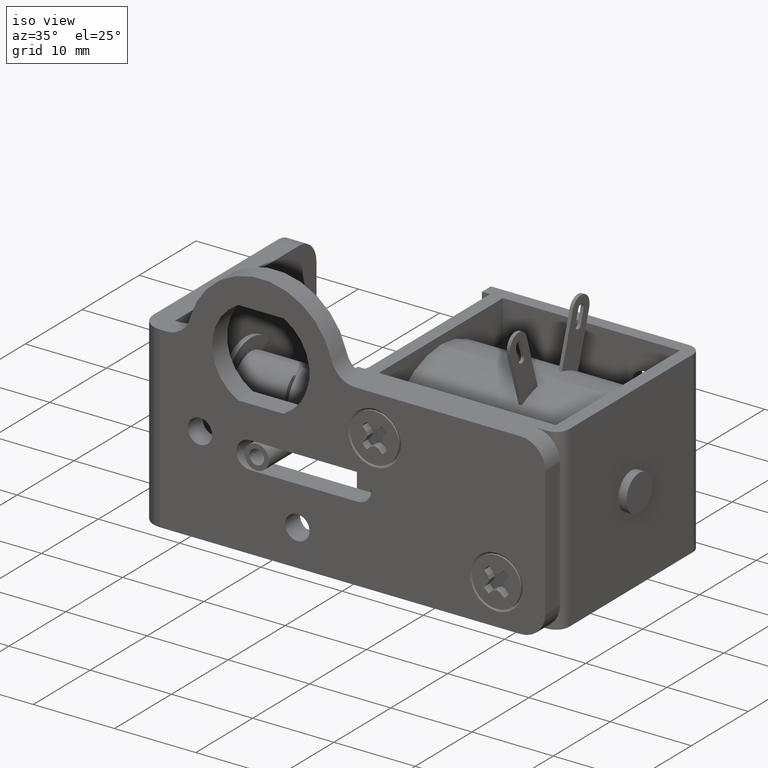
[diagram: clean part render]
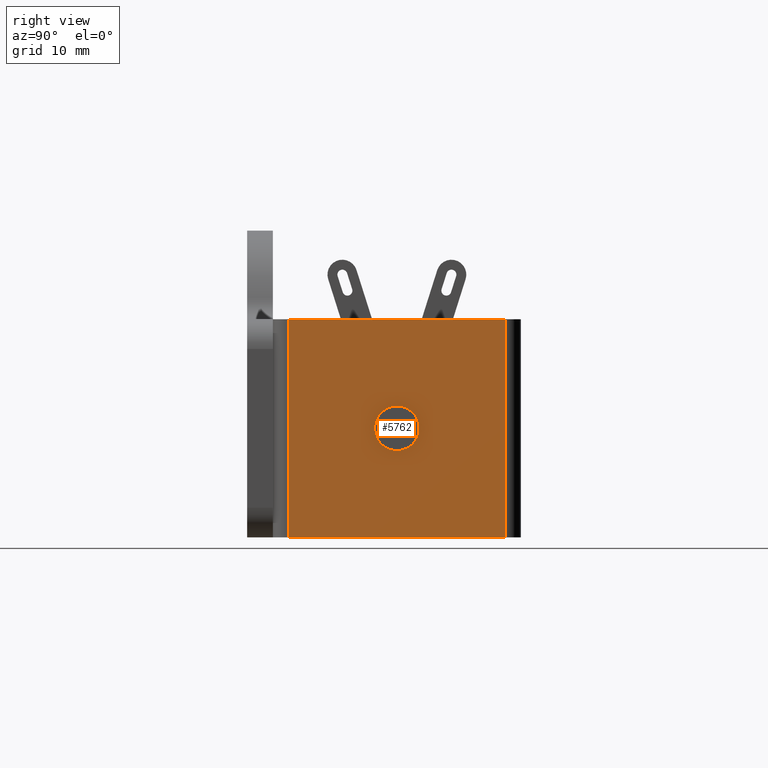
[diagram: tour spotlight — one face highlighted and labeled with its STEP entity id]
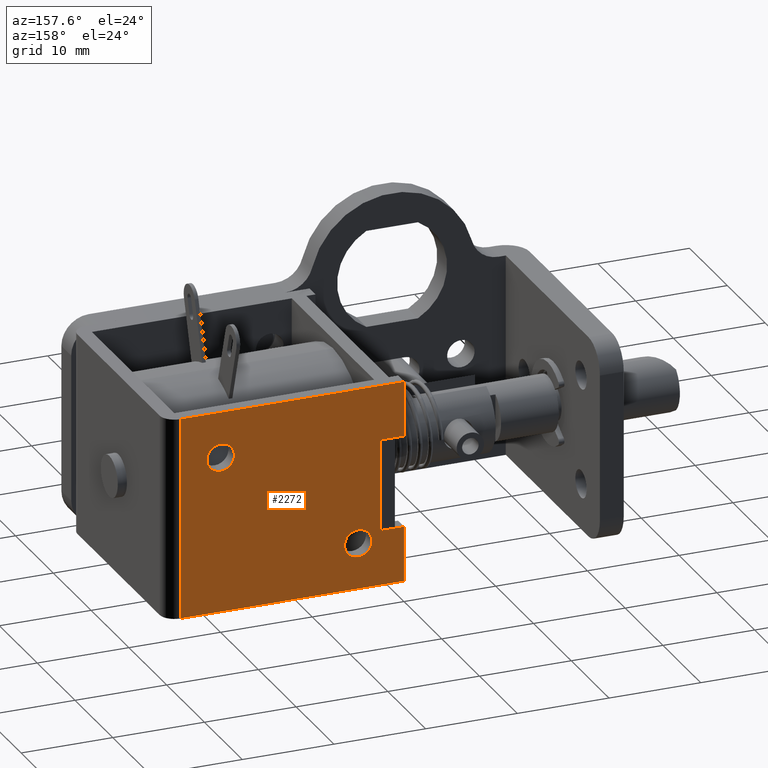
[diagram: tour spotlight — one face highlighted and labeled with its STEP entity id]
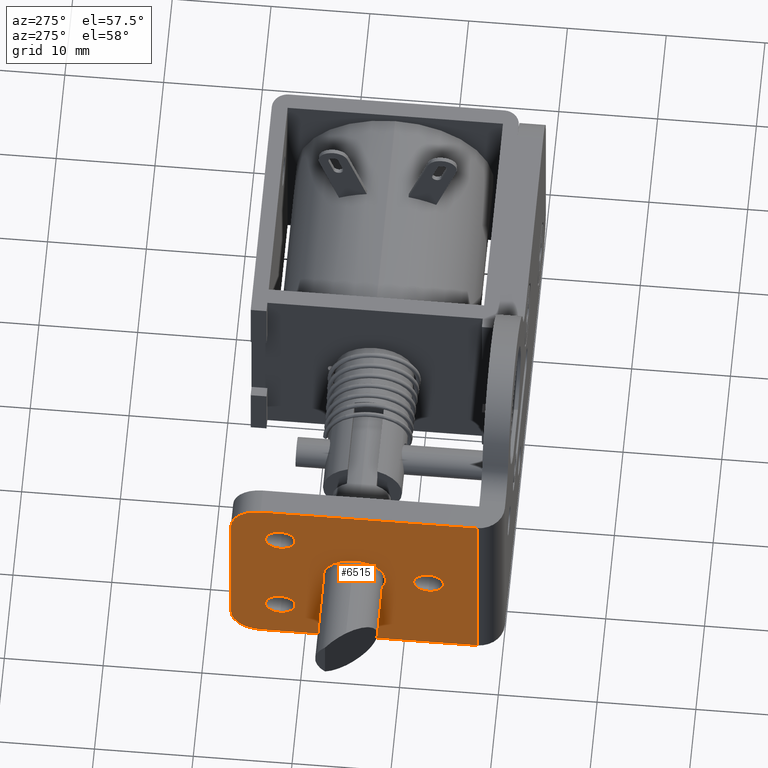
[diagram: tour spotlight — one face highlighted and labeled with its STEP entity id]
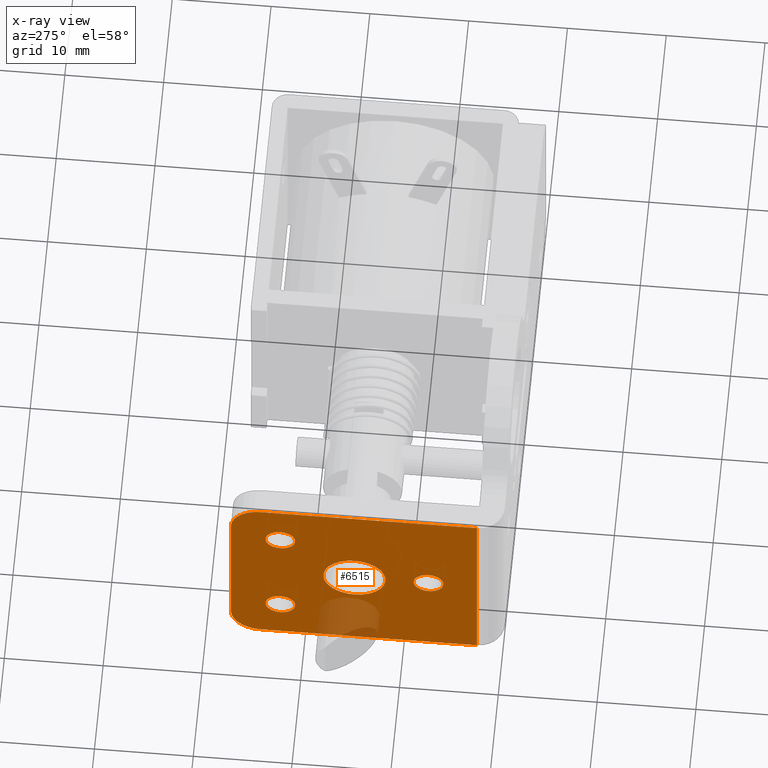
[diagram: x-ray of the same camera — body ghosted, this tour face saturated]
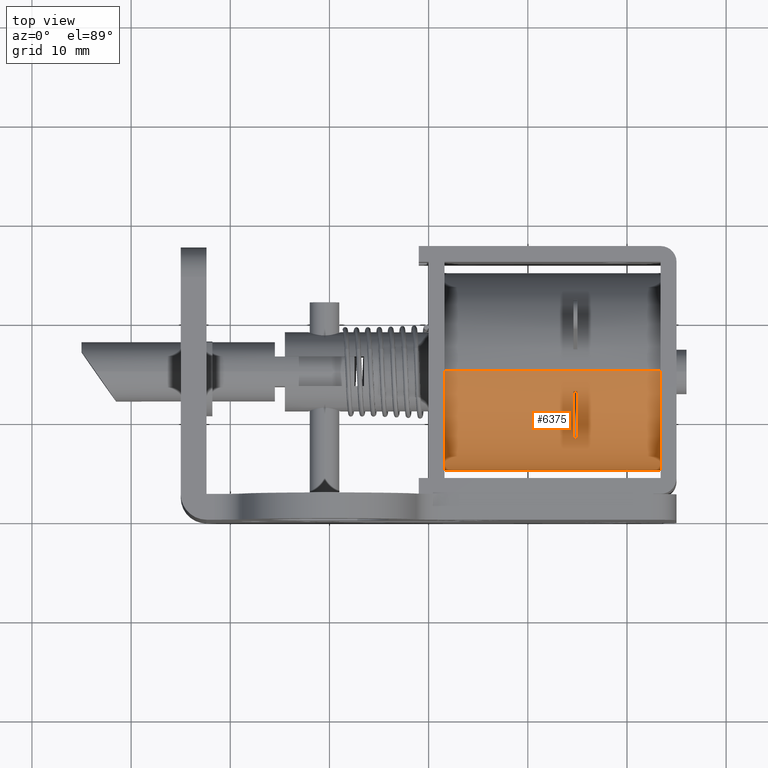
[diagram: tour spotlight — one face highlighted and labeled with its STEP entity id]
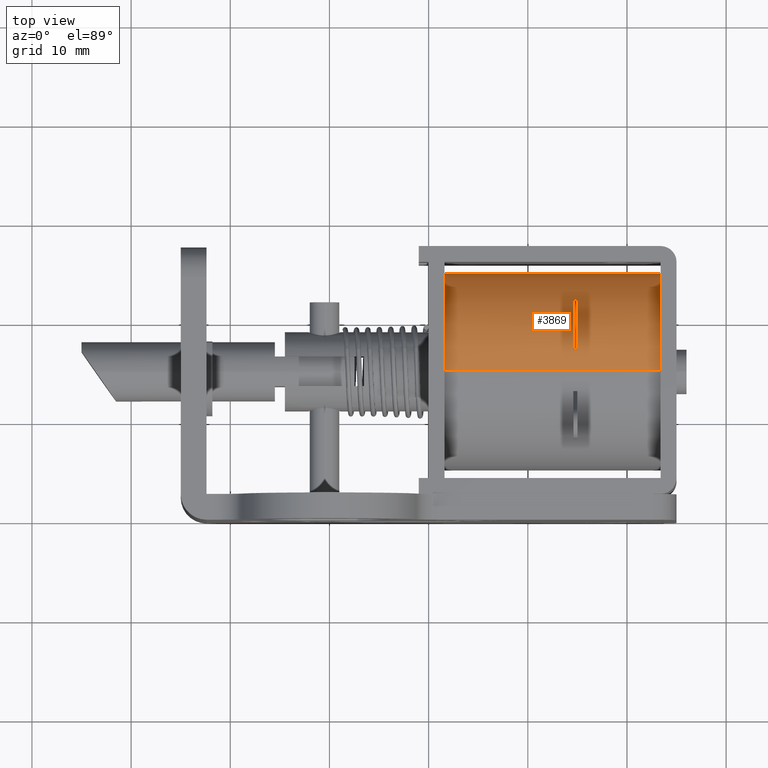
[diagram: tour spotlight — one face highlighted and labeled with its STEP entity id]
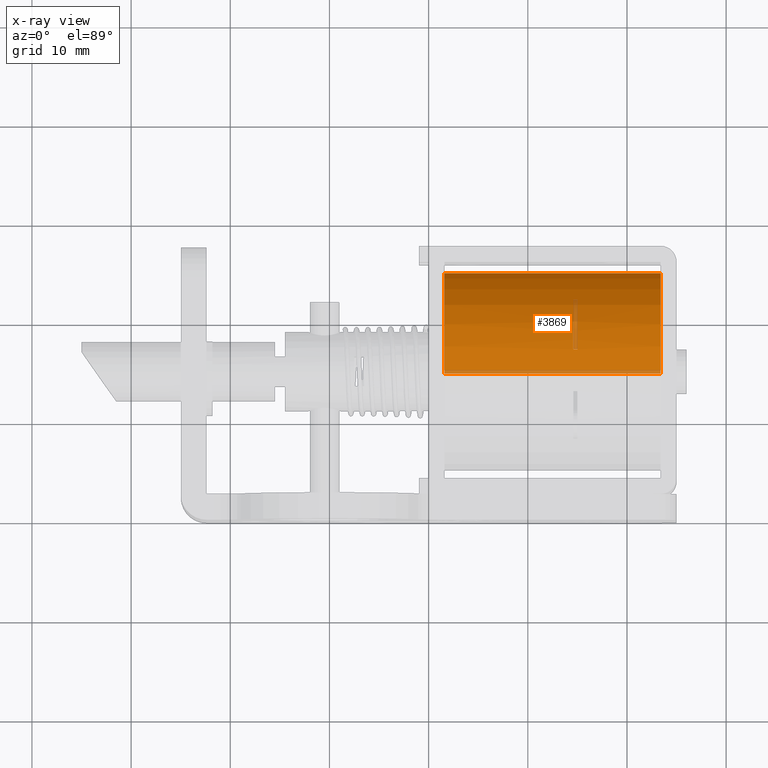
[diagram: x-ray of the same camera — body ghosted, this tour face saturated]
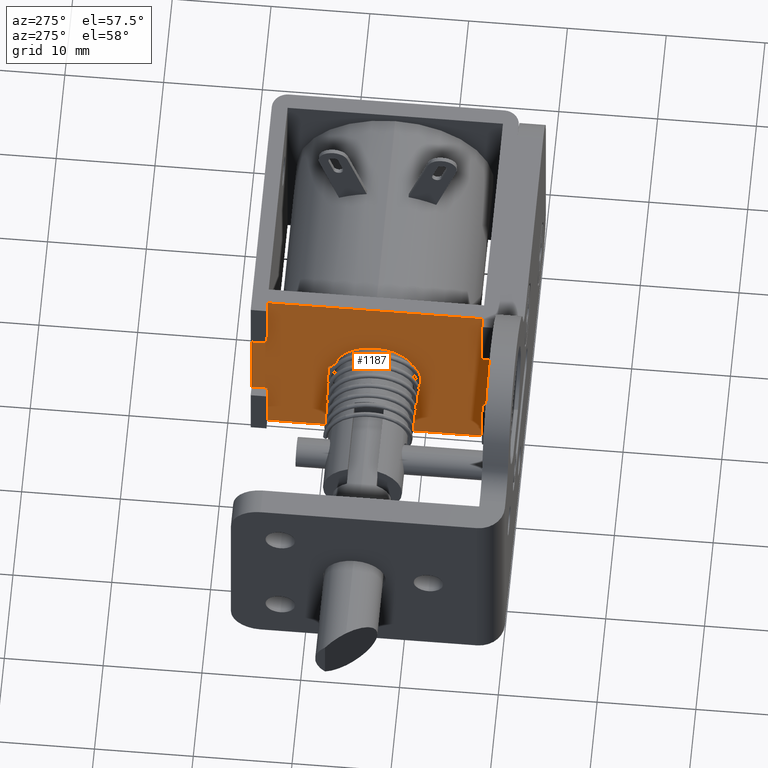
[diagram: tour spotlight — one face highlighted and labeled with its STEP entity id]
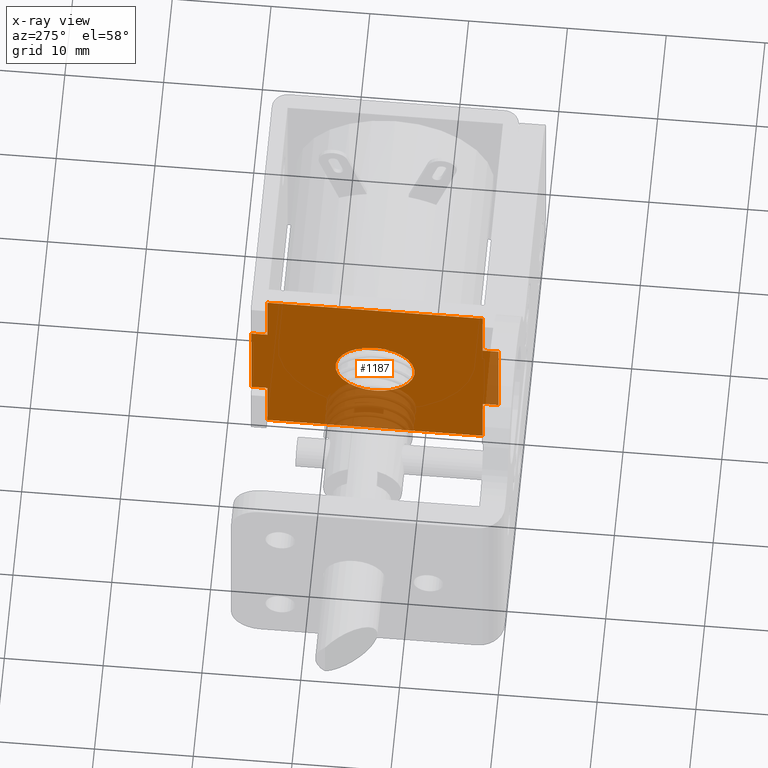
[diagram: x-ray of the same camera — body ghosted, this tour face saturated]
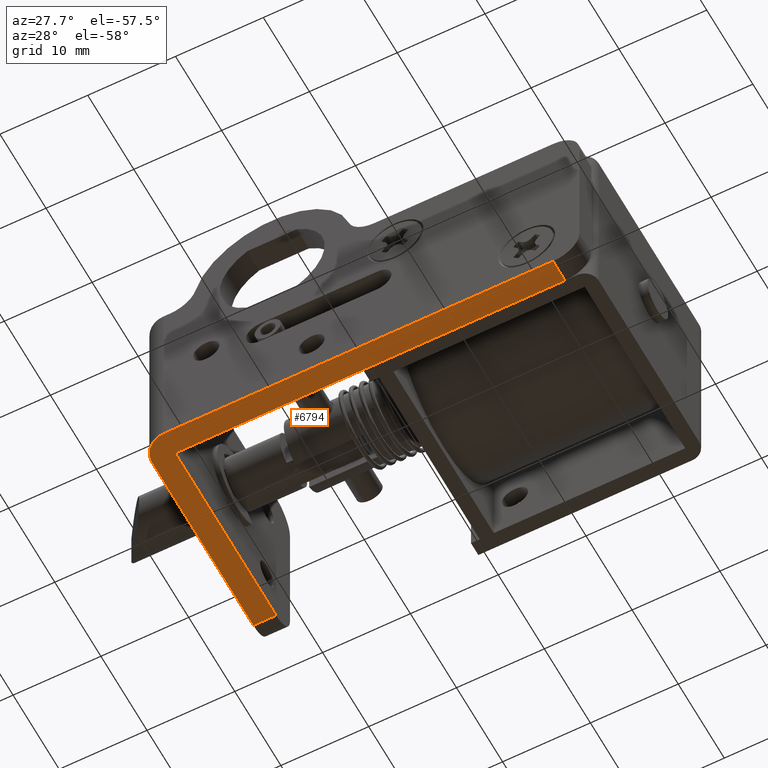
[diagram: tour spotlight — one face highlighted and labeled with its STEP entity id]
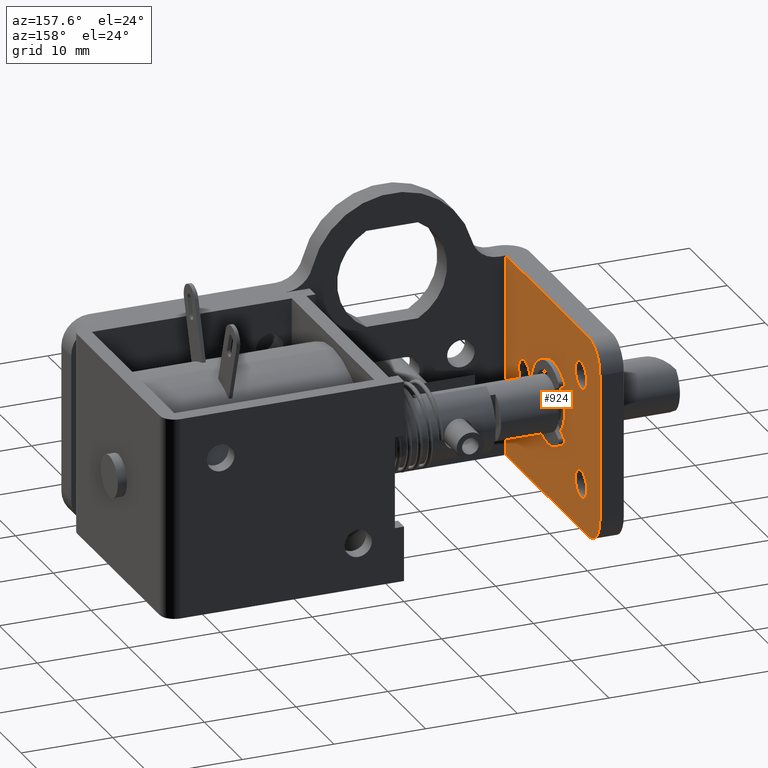
[diagram: tour spotlight — one face highlighted and labeled with its STEP entity id]
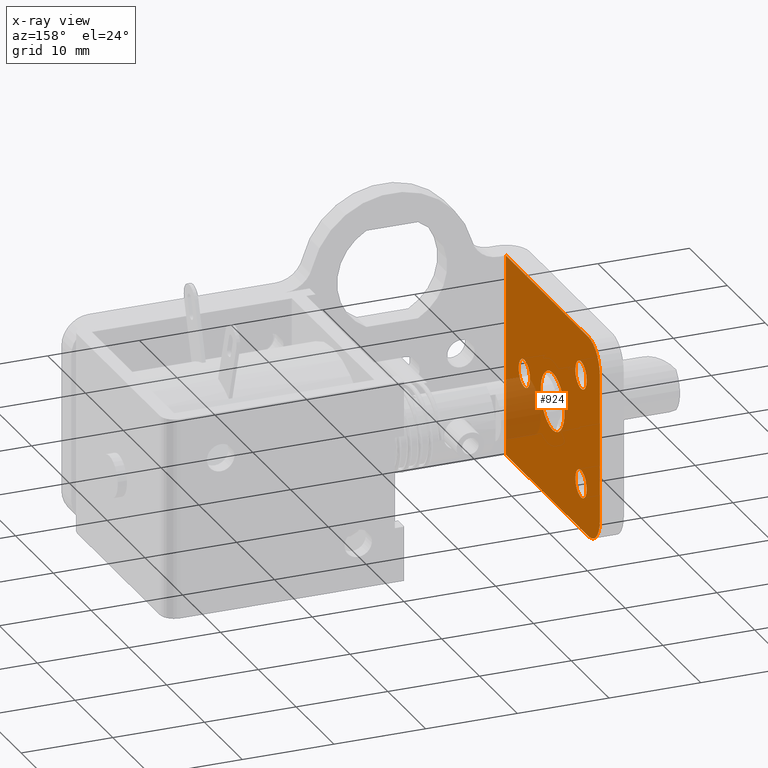
[diagram: x-ray of the same camera — body ghosted, this tour face saturated]
A machine part: a face-by-face anatomy tour. The part has 315 B-rep faces; the first image is the clean iso view, then the 8 largest visible faces are spotlighted one at a time (largest first), each with its STEP entity span.

Face 1 — right view, entity #5762. In plain terms, the highlighted planar face has unit normal (1, 0, 0).
Definition (entity closure, byte-faithful):
#616 = ORIENTED_EDGE ( 'NONE', *, *, #7647, .F. ) ;
#629 = VERTEX_POINT ( 'NONE', #4397 ) ;
#661 = VERTEX_POINT ( 'NONE', #1217 ) ;
#705 = ORIENTED_EDGE ( 'NONE', *, *, #10226, .F. ) ;
#768 = FACE_BOUND ( 'NONE', #7082, .T. ) ;
#1139 = ORIENTED_EDGE ( 'NONE', *, *, #2053, .F. ) ;
#1217 = CARTESIAN_POINT ( 'NONE',  ( 35.00000000000000000, 15.10000000000000100, -13.25000000000000000 ) ) ;
#1299 = ORIENTED_EDGE ( 'NONE', *, *, #1656, .T. ) ;
#1498 = DIRECTION ( 'NONE',  ( 1.000000000000000000, 0.0000000000000000000, 0.0000000000000000000 ) ) ;
#1656 = EDGE_CURVE ( 'NONE', #7832, #9471, #2687, .T. ) ;
#1970 = CARTESIAN_POINT ( 'NONE',  ( 35.00000000000000000, 26.00000000000000000, -22.00000000000000000 ) ) ;
#2053 = EDGE_CURVE ( 'NONE', #7832, #2954, #3433, .T. ) ;
#2212 = DIRECTION ( 'NONE',  ( 1.000000000000000000, 0.0000000000000000000, 0.0000000000000000000 ) ) ;
#2456 = EDGE_CURVE ( 'NONE', #6943, #2954, #4673, .T. ) ;
#2552 = VECTOR ( 'NONE', #8092, 1000.000000000000000 ) ;
#2687 = LINE ( 'NONE', #3823, #8395 ) ;
#2823 = CARTESIAN_POINT ( 'NONE',  ( 35.00000000000000000, 4.199999999999880300, 0.0000000000000000000 ) ) ;
#2840 = LINE ( 'NONE', #3574, #7145 ) ;
#2954 = VERTEX_POINT ( 'NONE', #8236 ) ;
#3110 = CARTESIAN_POINT ( 'NONE',  ( 35.00000000000000000, 2.599999999999879700, 0.0000000000000000000 ) ) ;
#3188 = CARTESIAN_POINT ( 'NONE',  ( 35.00000000000000000, 2.599999999999879700, -1000.000000000000000 ) ) ;
#3433 = LINE ( 'NONE', #3110, #5570 ) ;
#3574 = CARTESIAN_POINT ( 'NONE',  ( 35.00000000000000000, 2.599999999999879700, -22.00000000000000000 ) ) ;
#3652 = ORIENTED_EDGE ( 'NONE', *, *, #2456, .T. ) ;
#3807 = AXIS2_PLACEMENT_3D ( 'NONE', #3188, #1498, #4801 ) ;
#3823 = CARTESIAN_POINT ( 'NONE',  ( 35.00000000000000000, 4.199999999999880300, -1000.000000000000000 ) ) ;
#3967 = PLANE ( 'NONE',  #3807 ) ;
#3972 = DIRECTION ( 'NONE',  ( 1.000000000000000000, 0.0000000000000000000, 0.0000000000000000000 ) ) ;
#4276 = AXIS2_PLACEMENT_3D ( 'NONE', #8888, #3972, #9702 ) ;
#4397 = CARTESIAN_POINT ( 'NONE',  ( 35.00000000000000000, 15.10000000000000100, -8.749999999999998200 ) ) ;
#4646 = DIRECTION ( 'NONE',  ( -0.0000000000000000000, -0.0000000000000000000, -1.000000000000000000 ) ) ;
#4673 = LINE ( 'NONE', #10514, #2552 ) ;
#4801 = DIRECTION ( 'NONE',  ( 0.0000000000000000000, 0.0000000000000000000, -1.000000000000000000 ) ) ;
#5067 = EDGE_LOOP ( 'NONE', ( #10543, #3652, #1139, #1299 ) ) ;
#5494 = CARTESIAN_POINT ( 'NONE',  ( 35.00000000000000000, 4.199999999999880300, -22.00000000000000000 ) ) ;
#5570 = VECTOR ( 'NONE', #7967, 1000.000000000000000 ) ;
#5762 = ADVANCED_FACE ( 'NONE', ( #6670, #768 ), #3967, .T. ) ;
#6482 = AXIS2_PLACEMENT_3D ( 'NONE', #7040, #2212, #7876 ) ;
#6670 = FACE_OUTER_BOUND ( 'NONE', #5067, .T. ) ;
#6943 = VERTEX_POINT ( 'NONE', #1970 ) ;
#6958 = EDGE_CURVE ( 'NONE', #9471, #6943, #2840, .T. ) ;
#7040 = CARTESIAN_POINT ( 'NONE',  ( 35.00000000000000000, 15.10000000000000100, -11.00000000000000000 ) ) ;
#7082 = EDGE_LOOP ( 'NONE', ( #616, #705 ) ) ;
#7125 = CIRCLE ( 'NONE', #6482, 2.250000000000000400 ) ;
#7145 = VECTOR ( 'NONE', #9076, 1000.000000000000000 ) ;
#7647 = EDGE_CURVE ( 'NONE', #629, #661, #9079, .T. ) ;
#7832 = VERTEX_POINT ( 'NONE', #2823 ) ;
#7876 = DIRECTION ( 'NONE',  ( 0.0000000000000000000, 0.0000000000000000000, -1.000000000000000000 ) ) ;
#7967 = DIRECTION ( 'NONE',  ( 0.0000000000000000000, 1.000000000000000000, 0.0000000000000000000 ) ) ;
#8092 = DIRECTION ( 'NONE',  ( 0.0000000000000000000, 0.0000000000000000000, 1.000000000000000000 ) ) ;
#8236 = CARTESIAN_POINT ( 'NONE',  ( 35.00000000000000000, 26.00000000000000000, 0.0000000000000000000 ) ) ;
#8395 = VECTOR ( 'NONE', #4646, 1000.000000000000000 ) ;
#8888 = CARTESIAN_POINT ( 'NONE',  ( 35.00000000000000000, 15.10000000000000100, -11.00000000000000000 ) ) ;
#9076 = DIRECTION ( 'NONE',  ( 0.0000000000000000000, 1.000000000000000000, 0.0000000000000000000 ) ) ;
#9079 = CIRCLE ( 'NONE', #4276, 2.250000000000000400 ) ;
#9471 = VERTEX_POINT ( 'NONE', #5494 ) ;
#9702 = DIRECTION ( 'NONE',  ( 0.0000000000000000000, 0.0000000000000000000, -1.000000000000000000 ) ) ;
#10226 = EDGE_CURVE ( 'NONE', #661, #629, #7125, .T. ) ;
#10514 = CARTESIAN_POINT ( 'NONE',  ( 35.00000000000000000, 26.00000000000000000, -1000.000000000000000 ) ) ;
#10543 = ORIENTED_EDGE ( 'NONE', *, *, #6958, .T. ) ;

Face 2 — auxiliary view, entity #2272. In plain terms, the highlighted planar face has unit normal (0, 1, 0).
Definition (entity closure, byte-faithful):
#311 = DIRECTION ( 'NONE',  ( 0.0000000000000000000, 0.0000000000000000000, 1.000000000000000000 ) ) ;
#359 = CARTESIAN_POINT ( 'NONE',  ( 14.00000000000000000, 27.59999999999999800, -17.00000000000000000 ) ) ;
#429 = VECTOR ( 'NONE', #5369, 1000.000000000000000 ) ;
#510 = LINE ( 'NONE', #4633, #5044 ) ;
#692 = LINE ( 'NONE', #8775, #4963 ) ;
#697 = CARTESIAN_POINT ( 'NONE',  ( 1008.999999999999900, 27.59999999999999800, -6.000000000000000000 ) ) ;
#761 = ORIENTED_EDGE ( 'NONE', *, *, #9401, .T. ) ;
#779 = DIRECTION ( 'NONE',  ( -1.000000000000000000, 0.0000000000000000000, 0.0000000000000000000 ) ) ;
#833 = AXIS2_PLACEMENT_3D ( 'NONE', #10051, #5143, #311 ) ;
#851 = ORIENTED_EDGE ( 'NONE', *, *, #8422, .T. ) ;
#910 = ORIENTED_EDGE ( 'NONE', *, *, #8027, .F. ) ;
#1067 = LINE ( 'NONE', #697, #4846 ) ;
#1084 = LINE ( 'NONE', #9391, #4337 ) ;
#1189 = CARTESIAN_POINT ( 'NONE',  ( 14.00000000000000000, 27.59999999999999800, -17.00000000000000000 ) ) ;
#1197 = DIRECTION ( 'NONE',  ( 0.0000000000000000000, 0.0000000000000000000, 1.000000000000000000 ) ) ;
#1275 = DIRECTION ( 'NONE',  ( 0.0000000000000000000, 0.0000000000000000000, 1.000000000000000000 ) ) ;
#1287 = DIRECTION ( 'NONE',  ( -1.000000000000000000, 0.0000000000000000000, 0.0000000000000000000 ) ) ;
#1296 = VERTEX_POINT ( 'NONE', #1312 ) ;
#1312 = CARTESIAN_POINT ( 'NONE',  ( 9.000000000000000000, 27.59999999999999800, -22.00000000000000000 ) ) ;
#1678 = ORIENTED_EDGE ( 'NONE', *, *, #6947, .T. ) ;
#1929 = CARTESIAN_POINT ( 'NONE',  ( 29.00000000000000000, 27.59999999999999800, -6.500000000000000900 ) ) ;
#1996 = DIRECTION ( 'NONE',  ( 0.0000000000000000000, 0.0000000000000000000, 1.000000000000000000 ) ) ;
#2166 = EDGE_CURVE ( 'NONE', #7054, #5202, #2180, .T. ) ;
#2180 = CIRCLE ( 'NONE', #9298, 1.499999999999999600 ) ;
#2272 = ADVANCED_FACE ( 'NONE', ( #5689, #3786, #3544 ), #7877, .T. ) ;
#2470 = LINE ( 'NONE', #9631, #6492 ) ;
#2636 = EDGE_CURVE ( 'NONE', #5202, #7054, #3664, .T. ) ;
#2804 = DIRECTION ( 'NONE',  ( -0.0000000000000000000, -1.000000000000000000, -0.0000000000000000000 ) ) ;
#2827 = EDGE_CURVE ( 'NONE', #8108, #8770, #3051, .T. ) ;
#2910 = ORIENTED_EDGE ( 'NONE', *, *, #2636, .T. ) ;
#3051 = LINE ( 'NONE', #5547, #4916 ) ;
#3082 = VECTOR ( 'NONE', #3852, 1000.000000000000000 ) ;
#3101 = EDGE_CURVE ( 'NONE', #7022, #6791, #8480, .T. ) ;
#3159 = DIRECTION ( 'NONE',  ( 0.0000000000000000000, 0.0000000000000000000, -1.000000000000000000 ) ) ;
#3317 = ORIENTED_EDGE ( 'NONE', *, *, #2827, .T. ) ;
#3408 = ORIENTED_EDGE ( 'NONE', *, *, #7366, .F. ) ;
#3544 = FACE_BOUND ( 'NONE', #9817, .T. ) ;
#3626 = CARTESIAN_POINT ( 'NONE',  ( 11.60000599999978000, 27.59999999999999800, -16.00000000000000000 ) ) ;
#3664 = CIRCLE ( 'NONE', #8493, 1.499999999999999600 ) ;
#3740 = CARTESIAN_POINT ( 'NONE',  ( 9.000000000000000000, 27.59999999999999800, -1000.000000000000000 ) ) ;
#3786 = FACE_BOUND ( 'NONE', #6171, .T. ) ;
#3791 = AXIS2_PLACEMENT_3D ( 'NONE', #7666, #2804, #8496 ) ;
#3800 = CARTESIAN_POINT ( 'NONE',  ( 35.00000000000000000, 27.59999999999999800, -1000.000000000000000 ) ) ;
#3852 = DIRECTION ( 'NONE',  ( -1.000000000000000000, 0.0000000000000000000, 0.0000000000000000000 ) ) ;
#4337 = VECTOR ( 'NONE', #1287, 1000.000000000000000 ) ;
#4615 = DIRECTION ( 'NONE',  ( 0.0000000000000000000, 1.000000000000000000, 0.0000000000000000000 ) ) ;
#4633 = CARTESIAN_POINT ( 'NONE',  ( 9.000000000000000000, 27.59999999999999800, -1000.000000000000000 ) ) ;
#4764 = DIRECTION ( 'NONE',  ( -1.000000000000000000, 0.0000000000000000000, 0.0000000000000000000 ) ) ;
#4846 = VECTOR ( 'NONE', #779, 1000.000000000000000 ) ;
#4916 = VECTOR ( 'NONE', #6357, 1000.000000000000000 ) ;
#4963 = VECTOR ( 'NONE', #3159, 1000.000000000000000 ) ;
#5044 = VECTOR ( 'NONE', #1275, 1000.000000000000000 ) ;
#5143 = DIRECTION ( 'NONE',  ( -0.0000000000000000000, -1.000000000000000000, -0.0000000000000000000 ) ) ;
#5160 = EDGE_CURVE ( 'NONE', #10263, #9266, #510, .T. ) ;
#5202 = VERTEX_POINT ( 'NONE', #9649 ) ;
#5264 = EDGE_LOOP ( 'NONE', ( #8408, #10290, #3408, #3317, #761, #851, #910, #7872 ) ) ;
#5369 = DIRECTION ( 'NONE',  ( 0.0000000000000000000, 0.0000000000000000000, 1.000000000000000000 ) ) ;
#5457 = LINE ( 'NONE', #7938, #3082 ) ;
#5478 = CIRCLE ( 'NONE', #3791, 1.500000000000000000 ) ;
#5505 = VERTEX_POINT ( 'NONE', #10158 ) ;
#5547 = CARTESIAN_POINT ( 'NONE',  ( 33.39999999999999900, 27.59999999999999800, -1000.000000000000000 ) ) ;
#5689 = FACE_OUTER_BOUND ( 'NONE', #5264, .T. ) ;
#5756 = CARTESIAN_POINT ( 'NONE',  ( 29.00000000000000000, 27.59999999999999800, -3.500000000000000000 ) ) ;
#5951 = CARTESIAN_POINT ( 'NONE',  ( 14.00000000000000000, 27.59999999999999800, -18.50000000000000400 ) ) ;
#5995 = DIRECTION ( 'NONE',  ( -0.0000000000000000000, -1.000000000000000000, -0.0000000000000000000 ) ) ;
#6171 = EDGE_LOOP ( 'NONE', ( #1678, #7412 ) ) ;
#6331 = VERTEX_POINT ( 'NONE', #3626 ) ;
#6357 = DIRECTION ( 'NONE',  ( -0.0000000000000000000, -0.0000000000000000000, -1.000000000000000000 ) ) ;
#6442 = VERTEX_POINT ( 'NONE', #7714 ) ;
#6492 = VECTOR ( 'NONE', #4764, 1000.000000000000000 ) ;
#6638 = CARTESIAN_POINT ( 'NONE',  ( 33.39999999999999900, 27.59999999999999800, -22.00000000000000000 ) ) ;
#6791 = VERTEX_POINT ( 'NONE', #5756 ) ;
#6817 = DIRECTION ( 'NONE',  ( -0.0000000000000000000, -1.000000000000000000, -0.0000000000000000000 ) ) ;
#6947 = EDGE_CURVE ( 'NONE', #6791, #7022, #5478, .T. ) ;
#7022 = VERTEX_POINT ( 'NONE', #1929 ) ;
#7054 = VERTEX_POINT ( 'NONE', #5951 ) ;
#7366 = EDGE_CURVE ( 'NONE', #8108, #9266, #2470, .T. ) ;
#7412 = ORIENTED_EDGE ( 'NONE', *, *, #3101, .T. ) ;
#7596 = AXIS2_PLACEMENT_3D ( 'NONE', #3800, #4615, #10335 ) ;
#7611 = EDGE_CURVE ( 'NONE', #6442, #6331, #692, .T. ) ;
#7666 = CARTESIAN_POINT ( 'NONE',  ( 29.00000000000000000, 27.59999999999999800, -5.000000000000000000 ) ) ;
#7714 = CARTESIAN_POINT ( 'NONE',  ( 11.60000599999978000, 27.59999999999999800, -6.000000000000000000 ) ) ;
#7872 = ORIENTED_EDGE ( 'NONE', *, *, #7611, .F. ) ;
#7877 = PLANE ( 'NONE',  #7596 ) ;
#7911 = CARTESIAN_POINT ( 'NONE',  ( 8.999999999999900500, 27.59999999999999800, -6.000000000000000000 ) ) ;
#7938 = CARTESIAN_POINT ( 'NONE',  ( 1008.999999999999900, 27.59999999999999800, -16.00000000000000000 ) ) ;
#8027 = EDGE_CURVE ( 'NONE', #6331, #5505, #5457, .T. ) ;
#8108 = VERTEX_POINT ( 'NONE', #10499 ) ;
#8408 = ORIENTED_EDGE ( 'NONE', *, *, #9960, .T. ) ;
#8422 = EDGE_CURVE ( 'NONE', #1296, #5505, #9081, .T. ) ;
#8480 = CIRCLE ( 'NONE', #833, 1.500000000000000000 ) ;
#8493 = AXIS2_PLACEMENT_3D ( 'NONE', #359, #5995, #1197 ) ;
#8496 = DIRECTION ( 'NONE',  ( 0.0000000000000000000, 0.0000000000000000000, 1.000000000000000000 ) ) ;
#8504 = ORIENTED_EDGE ( 'NONE', *, *, #2166, .T. ) ;
#8770 = VERTEX_POINT ( 'NONE', #6638 ) ;
#8775 = CARTESIAN_POINT ( 'NONE',  ( 11.60000599999980000, 27.59999999999999800, 0.0000000000000000000 ) ) ;
#9081 = LINE ( 'NONE', #3740, #429 ) ;
#9105 = CARTESIAN_POINT ( 'NONE',  ( 9.000000000000000000, 27.59999999999999800, 0.0000000000000000000 ) ) ;
#9266 = VERTEX_POINT ( 'NONE', #9105 ) ;
#9298 = AXIS2_PLACEMENT_3D ( 'NONE', #1189, #6817, #1996 ) ;
#9391 = CARTESIAN_POINT ( 'NONE',  ( 35.00000000000000000, 27.59999999999999800, -22.00000000000000000 ) ) ;
#9401 = EDGE_CURVE ( 'NONE', #8770, #1296, #1084, .T. ) ;
#9631 = CARTESIAN_POINT ( 'NONE',  ( 35.00000000000000000, 27.59999999999999800, 0.0000000000000000000 ) ) ;
#9649 = CARTESIAN_POINT ( 'NONE',  ( 14.00000000000000000, 27.59999999999999800, -15.50000000000000200 ) ) ;
#9817 = EDGE_LOOP ( 'NONE', ( #2910, #8504 ) ) ;
#9960 = EDGE_CURVE ( 'NONE', #6442, #10263, #1067, .T. ) ;
#10051 = CARTESIAN_POINT ( 'NONE',  ( 29.00000000000000000, 27.59999999999999800, -5.000000000000000000 ) ) ;
#10158 = CARTESIAN_POINT ( 'NONE',  ( 9.000000000000000000, 27.59999999999999800, -16.00000000000000000 ) ) ;
#10263 = VERTEX_POINT ( 'NONE', #7911 ) ;
#10290 = ORIENTED_EDGE ( 'NONE', *, *, #5160, .T. ) ;
#10335 = DIRECTION ( 'NONE',  ( 0.0000000000000000000, 0.0000000000000000000, 1.000000000000000000 ) ) ;
#10499 = CARTESIAN_POINT ( 'NONE',  ( 33.39999999999999900, 27.59999999999999800, 0.0000000000000000000 ) ) ;

Face 3 — auxiliary view, entity #6515. An x-ray twin of the same camera follows (body ghosted, this face saturated) — the face is partly hidden behind the body. In plain terms, the highlighted planar face has unit normal (1, 0, 0).
Definition (entity closure, byte-faithful):
#78 = VERTEX_POINT ( 'NONE', #10534 ) ;
#171 = DIRECTION ( 'NONE',  ( 0.0000000000000000000, 0.0000000000000000000, 1.000000000000000000 ) ) ;
#374 = DIRECTION ( 'NONE',  ( 0.0000000000000000000, 0.0000000000000000000, 1.000000000000000000 ) ) ;
#387 = AXIS2_PLACEMENT_3D ( 'NONE', #3566, #9289, #4366 ) ;
#437 = AXIS2_PLACEMENT_3D ( 'NONE', #1829, #7489, #2641 ) ;
#606 = CARTESIAN_POINT ( 'NONE',  ( -14.99999200000000100, 1000.000000000000000, -22.00000000000000000 ) ) ;
#613 = FACE_BOUND ( 'NONE', #3068, .T. ) ;
#701 = CIRCLE ( 'NONE', #5418, 1.500000000000000000 ) ;
#736 = CIRCLE ( 'NONE', #3178, 2.999999999999999100 ) ;
#977 = DIRECTION ( 'NONE',  ( -1.000000000000000000, 0.0000000000000000000, 0.0000000000000000000 ) ) ;
#1179 = ORIENTED_EDGE ( 'NONE', *, *, #7586, .F. ) ;
#1269 = ORIENTED_EDGE ( 'NONE', *, *, #3651, .F. ) ;
#1282 = CARTESIAN_POINT ( 'NONE',  ( -14.99999200000002000, 7.500000000000000000, -9.500000000000000000 ) ) ;
#1429 = DIRECTION ( 'NONE',  ( 0.0000000000000000000, -1.000000000000000000, 0.0000000000000000000 ) ) ;
#1476 = CARTESIAN_POINT ( 'NONE',  ( -14.99999200000000100, 2.599999999999934800, -22.00000000000000000 ) ) ;
#1478 = CARTESIAN_POINT ( 'NONE',  ( -14.99999200000002000, 7.500000000000000000, -11.00000000000000000 ) ) ;
#1482 = DIRECTION ( 'NONE',  ( 0.0000000000000000000, 1.734723555452995200E-015, 1.000000000000000000 ) ) ;
#1523 = CARTESIAN_POINT ( 'NONE',  ( -14.99999200000002000, 15.00000000000000000, -7.849999999999999600 ) ) ;
#1613 = AXIS2_PLACEMENT_3D ( 'NONE', #3858, #9590, #4682 ) ;
#1682 = CARTESIAN_POINT ( 'NONE',  ( -14.99999200000002000, 22.50000000000000000, -18.50000000000000400 ) ) ;
#1722 = ORIENTED_EDGE ( 'NONE', *, *, #3839, .T. ) ;
#1787 = DIRECTION ( 'NONE',  ( 0.0000000000000000000, -1.000000000000000000, 0.0000000000000000000 ) ) ;
#1829 = CARTESIAN_POINT ( 'NONE',  ( -14.99999200000002000, 24.50000000000000000, -3.000000000000035100 ) ) ;
#2292 = DIRECTION ( 'NONE',  ( 0.0000000000000000000, 0.0000000000000000000, 1.000000000000000000 ) ) ;
#2298 = CARTESIAN_POINT ( 'NONE',  ( -14.99999200000000100, 27.50000000000000000, -4.770489777495729200E-014 ) ) ;
#2578 = DIRECTION ( 'NONE',  ( -1.000000000000000000, 0.0000000000000000000, 0.0000000000000000000 ) ) ;
#2641 = DIRECTION ( 'NONE',  ( 0.0000000000000000000, 0.0000000000000000000, 1.000000000000000000 ) ) ;
#2757 = FACE_BOUND ( 'NONE', #9904, .T. ) ;
#2925 = DIRECTION ( 'NONE',  ( -0.0000000000000000000, -0.0000000000000000000, 1.000000000000000000 ) ) ;
#2963 = CARTESIAN_POINT ( 'NONE',  ( -14.99999200000000100, 1000.000000000000000, -22.00000000000000000 ) ) ;
#3020 = FACE_BOUND ( 'NONE', #5908, .T. ) ;
#3068 = EDGE_LOOP ( 'NONE', ( #1179, #9137 ) ) ;
#3147 = VECTOR ( 'NONE', #1429, 1000.000000000000000 ) ;
#3178 = AXIS2_PLACEMENT_3D ( 'NONE', #8868, #3957, #9688 ) ;
#3266 = VERTEX_POINT ( 'NONE', #10332 ) ;
#3268 = CIRCLE ( 'NONE', #9862, 3.149999999999999900 ) ;
#3285 = EDGE_CURVE ( 'NONE', #8872, #5993, #5516, .T. ) ;
#3324 = AXIS2_PLACEMENT_3D ( 'NONE', #4044, #9772, #4865 ) ;
#3456 = EDGE_CURVE ( 'NONE', #3266, #7413, #3741, .T. ) ;
#3541 = EDGE_CURVE ( 'NONE', #7963, #3819, #3268, .T. ) ;
#3566 = CARTESIAN_POINT ( 'NONE',  ( -14.99999200000002000, 22.50000000000000000, -17.00000000000000000 ) ) ;
#3618 = VECTOR ( 'NONE', #2925, 1000.000000000000000 ) ;
#3651 = EDGE_CURVE ( 'NONE', #78, #7896, #8466, .T. ) ;
#3732 = EDGE_CURVE ( 'NONE', #5993, #6107, #7698, .T. ) ;
#3741 = CIRCLE ( 'NONE', #3324, 1.499999999999999600 ) ;
#3819 = VERTEX_POINT ( 'NONE', #1523 ) ;
#3839 = EDGE_CURVE ( 'NONE', #6818, #8872, #736, .T. ) ;
#3858 = CARTESIAN_POINT ( 'NONE',  ( -14.99999200000002000, 15.00000000000000000, -11.00000000000000000 ) ) ;
#3957 = DIRECTION ( 'NONE',  ( -1.000000000000000000, 0.0000000000000000000, 0.0000000000000000000 ) ) ;
#4044 = CARTESIAN_POINT ( 'NONE',  ( -14.99999200000002000, 22.50000000000000000, -17.00000000000000000 ) ) ;
#4075 = CIRCLE ( 'NONE', #7251, 1.500000000000000000 ) ;
#4242 = EDGE_CURVE ( 'NONE', #6818, #9037, #8207, .T. ) ;
#4285 = ORIENTED_EDGE ( 'NONE', *, *, #8276, .T. ) ;
#4366 = DIRECTION ( 'NONE',  ( 0.0000000000000000000, 0.0000000000000000000, 1.000000000000000000 ) ) ;
#4370 = CARTESIAN_POINT ( 'NONE',  ( -14.99999200000002000, 24.50000015707964700, -3.685940441755519700E-014 ) ) ;
#4505 = CARTESIAN_POINT ( 'NONE',  ( -14.99999200000002000, 22.50000000000000000, -6.500000000000000900 ) ) ;
#4548 = EDGE_CURVE ( 'NONE', #7413, #3266, #8074, .T. ) ;
#4566 = DIRECTION ( 'NONE',  ( 1.000000000000000000, 0.0000000000000000000, 0.0000000000000000000 ) ) ;
#4603 = CARTESIAN_POINT ( 'NONE',  ( -14.99999200000002000, 15.00000000000000000, -14.14999999999999900 ) ) ;
#4642 = EDGE_LOOP ( 'NONE', ( #7719, #5619, #7315, #4285, #8657, #1722 ) ) ;
#4682 = DIRECTION ( 'NONE',  ( 0.0000000000000000000, 0.0000000000000000000, 1.000000000000000000 ) ) ;
#4865 = DIRECTION ( 'NONE',  ( 0.0000000000000000000, 0.0000000000000000000, 1.000000000000000000 ) ) ;
#4889 = FACE_OUTER_BOUND ( 'NONE', #4642, .T. ) ;
#5007 = DIRECTION ( 'NONE',  ( -1.000000000000000000, 0.0000000000000000000, 0.0000000000000000000 ) ) ;
#5201 = DIRECTION ( 'NONE',  ( -1.000000000000000000, 0.0000000000000000000, 0.0000000000000000000 ) ) ;
#5271 = ORIENTED_EDGE ( 'NONE', *, *, #4548, .F. ) ;
#5398 = CARTESIAN_POINT ( 'NONE',  ( -14.99999200000002000, 27.50000000000000000, -3.000000261799304900 ) ) ;
#5418 = AXIS2_PLACEMENT_3D ( 'NONE', #5786, #977, #6592 ) ;
#5514 = ORIENTED_EDGE ( 'NONE', *, *, #10041, .F. ) ;
#5516 = LINE ( 'NONE', #606, #3147 ) ;
#5572 = VERTEX_POINT ( 'NONE', #4505 ) ;
#5619 = ORIENTED_EDGE ( 'NONE', *, *, #3732, .T. ) ;
#5782 = CARTESIAN_POINT ( 'NONE',  ( -14.99999200000000100, 1000.000000000000000, 0.0000000000000000000 ) ) ;
#5786 = CARTESIAN_POINT ( 'NONE',  ( -14.99999200000002000, 22.50000000000000000, -5.000000000000000000 ) ) ;
#5908 = EDGE_LOOP ( 'NONE', ( #6535, #5271 ) ) ;
#5993 = VERTEX_POINT ( 'NONE', #1476 ) ;
#6107 = VERTEX_POINT ( 'NONE', #7266 ) ;
#6210 = ORIENTED_EDGE ( 'NONE', *, *, #6964, .F. ) ;
#6515 = ADVANCED_FACE ( 'NONE', ( #4889, #3020, #9255, #2757, #613 ), #6984, .F. ) ;
#6535 = ORIENTED_EDGE ( 'NONE', *, *, #3456, .F. ) ;
#6592 = DIRECTION ( 'NONE',  ( 0.0000000000000000000, 0.0000000000000000000, 1.000000000000000000 ) ) ;
#6818 = VERTEX_POINT ( 'NONE', #9082 ) ;
#6964 = EDGE_CURVE ( 'NONE', #5572, #9399, #701, .T. ) ;
#6984 = PLANE ( 'NONE',  #8687 ) ;
#7115 = DIRECTION ( 'NONE',  ( -1.000000000000000000, 0.0000000000000000000, 0.0000000000000000000 ) ) ;
#7251 = AXIS2_PLACEMENT_3D ( 'NONE', #9914, #5007, #171 ) ;
#7266 = CARTESIAN_POINT ( 'NONE',  ( -14.99999200000000100, 2.599999999999934800, 0.0000000000000000000 ) ) ;
#7315 = ORIENTED_EDGE ( 'NONE', *, *, #9240, .F. ) ;
#7413 = VERTEX_POINT ( 'NONE', #1682 ) ;
#7415 = CIRCLE ( 'NONE', #7432, 1.499999999999999600 ) ;
#7428 = CARTESIAN_POINT ( 'NONE',  ( -14.99999200000002000, 15.00000000000000000, -11.00000000000000000 ) ) ;
#7432 = AXIS2_PLACEMENT_3D ( 'NONE', #1478, #7115, #2292 ) ;
#7489 = DIRECTION ( 'NONE',  ( -1.000000000000000000, 0.0000000000000000000, 0.0000000000000000000 ) ) ;
#7586 = EDGE_CURVE ( 'NONE', #3819, #7963, #9337, .T. ) ;
#7698 = LINE ( 'NONE', #7861, #3618 ) ;
#7719 = ORIENTED_EDGE ( 'NONE', *, *, #3285, .T. ) ;
#7728 = CARTESIAN_POINT ( 'NONE',  ( -14.99999200000002000, 22.50000000000000000, -3.500000000000000000 ) ) ;
#7801 = VECTOR ( 'NONE', #1787, 1000.000000000000000 ) ;
#7861 = CARTESIAN_POINT ( 'NONE',  ( -14.99999200000000100, 2.599999999999934800, 0.0000000000000000000 ) ) ;
#7896 = VERTEX_POINT ( 'NONE', #1282 ) ;
#7963 = VERTEX_POINT ( 'NONE', #4603 ) ;
#8074 = CIRCLE ( 'NONE', #387, 1.499999999999999600 ) ;
#8133 = ORIENTED_EDGE ( 'NONE', *, *, #9104, .F. ) ;
#8207 = LINE ( 'NONE', #2298, #9859 ) ;
#8256 = DIRECTION ( 'NONE',  ( 0.0000000000000000000, 0.0000000000000000000, 1.000000000000000000 ) ) ;
#8276 = EDGE_CURVE ( 'NONE', #8892, #9037, #10343, .T. ) ;
#8466 = CIRCLE ( 'NONE', #10411, 1.499999999999999600 ) ;
#8657 = ORIENTED_EDGE ( 'NONE', *, *, #4242, .F. ) ;
#8687 = AXIS2_PLACEMENT_3D ( 'NONE', #2963, #4566, #10283 ) ;
#8836 = EDGE_LOOP ( 'NONE', ( #5514, #6210 ) ) ;
#8868 = CARTESIAN_POINT ( 'NONE',  ( -14.99999200000002000, 24.50000000000000000, -19.00000000000000000 ) ) ;
#8872 = VERTEX_POINT ( 'NONE', #10097 ) ;
#8892 = VERTEX_POINT ( 'NONE', #4370 ) ;
#9037 = VERTEX_POINT ( 'NONE', #5398 ) ;
#9082 = CARTESIAN_POINT ( 'NONE',  ( -14.99999200000002000, 27.50000000000000000, -18.99999952876100200 ) ) ;
#9104 = EDGE_CURVE ( 'NONE', #7896, #78, #7415, .T. ) ;
#9137 = ORIENTED_EDGE ( 'NONE', *, *, #3541, .F. ) ;
#9240 = EDGE_CURVE ( 'NONE', #8892, #6107, #10221, .T. ) ;
#9255 = FACE_BOUND ( 'NONE', #8836, .T. ) ;
#9289 = DIRECTION ( 'NONE',  ( -1.000000000000000000, 0.0000000000000000000, 0.0000000000000000000 ) ) ;
#9337 = CIRCLE ( 'NONE', #1613, 3.149999999999999900 ) ;
#9399 = VERTEX_POINT ( 'NONE', #7728 ) ;
#9590 = DIRECTION ( 'NONE',  ( -1.000000000000000000, 0.0000000000000000000, 0.0000000000000000000 ) ) ;
#9688 = DIRECTION ( 'NONE',  ( 0.0000000000000000000, 0.0000000000000000000, 1.000000000000000000 ) ) ;
#9772 = DIRECTION ( 'NONE',  ( -1.000000000000000000, 0.0000000000000000000, 0.0000000000000000000 ) ) ;
#9859 = VECTOR ( 'NONE', #1482, 1000.000000000000000 ) ;
#9862 = AXIS2_PLACEMENT_3D ( 'NONE', #7428, #2578, #8256 ) ;
#9904 = EDGE_LOOP ( 'NONE', ( #8133, #1269 ) ) ;
#9914 = CARTESIAN_POINT ( 'NONE',  ( -14.99999200000002000, 22.50000000000000000, -5.000000000000000000 ) ) ;
#10041 = EDGE_CURVE ( 'NONE', #9399, #5572, #4075, .T. ) ;
#10097 = CARTESIAN_POINT ( 'NONE',  ( -14.99999200000002000, 24.50000000000000000, -22.00000000000000000 ) ) ;
#10108 = CARTESIAN_POINT ( 'NONE',  ( -14.99999200000002000, 7.500000000000000000, -11.00000000000000000 ) ) ;
#10221 = LINE ( 'NONE', #5782, #7801 ) ;
#10283 = DIRECTION ( 'NONE',  ( 0.0000000000000000000, 0.0000000000000000000, -1.000000000000000000 ) ) ;
#10332 = CARTESIAN_POINT ( 'NONE',  ( -14.99999200000002000, 22.50000000000000000, -15.50000000000000200 ) ) ;
#10343 = CIRCLE ( 'NONE', #437, 3.000000000000000000 ) ;
#10411 = AXIS2_PLACEMENT_3D ( 'NONE', #10108, #5201, #374 ) ;
#10534 = CARTESIAN_POINT ( 'NONE',  ( -14.99999200000002000, 7.500000000000000000, -12.49999999999999800 ) ) ;

Face 4 — top view, entity #6375. In plain terms, the highlighted cylindrical surface (partial cylindrical patch) has radius 10 mm, axis along (1, 0, 0).
Definition (entity closure, byte-faithful):
#29 = CIRCLE ( 'NONE', #2197, 9.999999999999998200 ) ;
#87 = EDGE_CURVE ( 'NONE', #2232, #9767, #7920, .T. ) ;
#164 = DIRECTION ( 'NONE',  ( 0.0000000000000000000, 0.0000000000000000000, 1.000000000000000000 ) ) ;
#516 = EDGE_CURVE ( 'NONE', #2232, #5483, #29, .T. ) ;
#602 = ORIENTED_EDGE ( 'NONE', *, *, #87, .T. ) ;
#612 = ORIENTED_EDGE ( 'NONE', *, *, #516, .F. ) ;
#770 = EDGE_LOOP ( 'NONE', ( #9557, #612, #602, #10278 ) ) ;
#896 = AXIS2_PLACEMENT_3D ( 'NONE', #9907, #5004, #164 ) ;
#1058 = LINE ( 'NONE', #4151, #9452 ) ;
#1291 = CARTESIAN_POINT ( 'NONE',  ( 24.60000600000000000, 12.98846115220912100, -1.225471689423060000 ) ) ;
#1538 = ORIENTED_EDGE ( 'NONE', *, *, #6661, .T. ) ;
#1743 = DIRECTION ( 'NONE',  ( 1.000000000000000000, 0.0000000000000000000, 0.0000000000000000000 ) ) ;
#2197 = AXIS2_PLACEMENT_3D ( 'NONE', #4712, #10434, #5521 ) ;
#2232 = VERTEX_POINT ( 'NONE', #1291 ) ;
#2416 = VERTEX_POINT ( 'NONE', #2428 ) ;
#2428 = CARTESIAN_POINT ( 'NONE',  ( 11.60000599999978000, 15.10000000000000100, -0.9999999999999991100 ) ) ;
#2911 = ORIENTED_EDGE ( 'NONE', *, *, #8464, .F. ) ;
#3125 = DIRECTION ( 'NONE',  ( 1.000000000000000000, 0.0000000000000000000, 0.0000000000000000000 ) ) ;
#3319 = EDGE_CURVE ( 'NONE', #5483, #6985, #7447, .T. ) ;
#3508 = CARTESIAN_POINT ( 'NONE',  ( 25.00000000000000000, 15.10000000000000100, -11.00000000000000000 ) ) ;
#4002 = FACE_BOUND ( 'NONE', #770, .T. ) ;
#4094 = AXIS2_PLACEMENT_3D ( 'NONE', #4785, #10493, #5590 ) ;
#4151 = CARTESIAN_POINT ( 'NONE',  ( -966.5999899999999300, 15.10000000000000100, -20.99999999999999600 ) ) ;
#4311 = DIRECTION ( 'NONE',  ( 0.0000000000000000000, 0.0000000000000000000, -1.000000000000000000 ) ) ;
#4437 = CARTESIAN_POINT ( 'NONE',  ( 24.60000600000000000, 10.18004478663098000, -2.294022702852709800 ) ) ;
#4623 = CARTESIAN_POINT ( 'NONE',  ( 33.40001000000000200, 15.10000000000000100, -0.9999999999999991100 ) ) ;
#4644 = CARTESIAN_POINT ( 'NONE',  ( 11.60000599999978000, 15.10000000000000100, -20.99999999999999600 ) ) ;
#4712 = CARTESIAN_POINT ( 'NONE',  ( 24.60000600000000000, 15.10000000000000100, -11.00000000000000000 ) ) ;
#4719 = CIRCLE ( 'NONE', #5173, 9.999999999999998200 ) ;
#4748 = ORIENTED_EDGE ( 'NONE', *, *, #10486, .T. ) ;
#4785 = CARTESIAN_POINT ( 'NONE',  ( 11.60000599999978000, 15.10000000000000100, -11.00000000000000000 ) ) ;
#5004 = DIRECTION ( 'NONE',  ( -1.000000000000000000, 0.0000000000000000000, 0.0000000000000000000 ) ) ;
#5093 = ORIENTED_EDGE ( 'NONE', *, *, #5322, .T. ) ;
#5159 = CARTESIAN_POINT ( 'NONE',  ( 25.00000000000000000, 12.98846115220912100, -1.225471689423060000 ) ) ;
#5173 = AXIS2_PLACEMENT_3D ( 'NONE', #3508, #9220, #4311 ) ;
#5322 = EDGE_CURVE ( 'NONE', #6523, #9053, #7602, .T. ) ;
#5373 = AXIS2_PLACEMENT_3D ( 'NONE', #6761, #8431, #7609 ) ;
#5417 = EDGE_LOOP ( 'NONE', ( #2911, #1538, #4748, #5093 ) ) ;
#5483 = VERTEX_POINT ( 'NONE', #4437 ) ;
#5521 = DIRECTION ( 'NONE',  ( 0.0000000000000000000, 0.0000000000000000000, -1.000000000000000000 ) ) ;
#5590 = DIRECTION ( 'NONE',  ( 0.0000000000000000000, 0.0000000000000000000, -1.000000000000000000 ) ) ;
#5624 = CARTESIAN_POINT ( 'NONE',  ( -975.0000000000000000, 12.98846115220912100, -1.225471689423060000 ) ) ;
#5725 = VECTOR ( 'NONE', #6447, 1000.000000000000000 ) ;
#5766 = CIRCLE ( 'NONE', #4094, 9.999999999999998200 ) ;
#6375 = ADVANCED_FACE ( 'NONE', ( #8104, #4002 ), #10007, .T. ) ;
#6447 = DIRECTION ( 'NONE',  ( 1.000000000000000000, 0.0000000000000000000, 0.0000000000000000000 ) ) ;
#6523 = VERTEX_POINT ( 'NONE', #9479 ) ;
#6661 = EDGE_CURVE ( 'NONE', #2416, #8020, #5766, .T. ) ;
#6761 = CARTESIAN_POINT ( 'NONE',  ( -966.5999899999999300, 15.10000000000000100, -11.00000000000000000 ) ) ;
#6985 = VERTEX_POINT ( 'NONE', #8339 ) ;
#7085 = DIRECTION ( 'NONE',  ( 1.000000000000000000, 0.0000000000000000000, 0.0000000000000000000 ) ) ;
#7188 = VECTOR ( 'NONE', #3125, 1000.000000000000000 ) ;
#7447 = LINE ( 'NONE', #9550, #7188 ) ;
#7602 = CIRCLE ( 'NONE', #896, 10.00000000000000000 ) ;
#7609 = DIRECTION ( 'NONE',  ( 0.0000000000000000000, 0.0000000000000000000, -1.000000000000000000 ) ) ;
#7784 = VECTOR ( 'NONE', #7085, 1000.000000000000000 ) ;
#7887 = CARTESIAN_POINT ( 'NONE',  ( -966.5999899999999300, 15.10000000000000100, -0.9999999999999991100 ) ) ;
#7920 = LINE ( 'NONE', #5624, #5725 ) ;
#8020 = VERTEX_POINT ( 'NONE', #4644 ) ;
#8104 = FACE_OUTER_BOUND ( 'NONE', #5417, .T. ) ;
#8339 = CARTESIAN_POINT ( 'NONE',  ( 25.00000000000000000, 10.18004478663098000, -2.294022702852709800 ) ) ;
#8431 = DIRECTION ( 'NONE',  ( 1.000000000000000000, 0.0000000000000000000, 0.0000000000000000000 ) ) ;
#8464 = EDGE_CURVE ( 'NONE', #2416, #9053, #9954, .T. ) ;
#9053 = VERTEX_POINT ( 'NONE', #4623 ) ;
#9220 = DIRECTION ( 'NONE',  ( 1.000000000000000000, 0.0000000000000000000, 0.0000000000000000000 ) ) ;
#9452 = VECTOR ( 'NONE', #1743, 1000.000000000000000 ) ;
#9479 = CARTESIAN_POINT ( 'NONE',  ( 33.40001000000000200, 15.10000000000000100, -20.99999999999999600 ) ) ;
#9550 = CARTESIAN_POINT ( 'NONE',  ( -975.0000000000000000, 10.18004478663098000, -2.294022702852709800 ) ) ;
#9557 = ORIENTED_EDGE ( 'NONE', *, *, #3319, .F. ) ;
#9719 = EDGE_CURVE ( 'NONE', #9767, #6985, #4719, .T. ) ;
#9767 = VERTEX_POINT ( 'NONE', #5159 ) ;
#9907 = CARTESIAN_POINT ( 'NONE',  ( 33.40001000000000200, 15.10000000000000100, -11.00000000000000000 ) ) ;
#9954 = LINE ( 'NONE', #7887, #7784 ) ;
#10007 = CYLINDRICAL_SURFACE ( 'NONE', #5373, 9.999999999999998200 ) ;
#10278 = ORIENTED_EDGE ( 'NONE', *, *, #9719, .T. ) ;
#10434 = DIRECTION ( 'NONE',  ( 1.000000000000000000, 0.0000000000000000000, 0.0000000000000000000 ) ) ;
#10486 = EDGE_CURVE ( 'NONE', #8020, #6523, #1058, .T. ) ;
#10493 = DIRECTION ( 'NONE',  ( 1.000000000000000000, 0.0000000000000000000, 0.0000000000000000000 ) ) ;

Face 5 — top view, entity #3869. An x-ray twin of the same camera follows (body ghosted, this face saturated) — the face is partly hidden behind the body. In plain terms, the highlighted cylindrical surface (partial cylindrical patch) has radius 10 mm, axis along (1, 0, 0).
Definition (entity closure, byte-faithful):
#342 = DIRECTION ( 'NONE',  ( 1.000000000000000000, 0.0000000000000000000, 0.0000000000000000000 ) ) ;
#935 = AXIS2_PLACEMENT_3D ( 'NONE', #3608, #9331, #4416 ) ;
#964 = CARTESIAN_POINT ( 'NONE',  ( 33.40001000000000200, 15.10000000000000100, -11.00000000000000000 ) ) ;
#1058 = LINE ( 'NONE', #4151, #9452 ) ;
#1160 = EDGE_CURVE ( 'NONE', #5620, #4354, #9317, .T. ) ;
#1603 = CARTESIAN_POINT ( 'NONE',  ( -966.5999899999999300, 15.10000000000000100, -11.00000000000000000 ) ) ;
#1676 = CARTESIAN_POINT ( 'NONE',  ( 24.60000600000000000, 17.21152277222040200, -1.225468216717819900 ) ) ;
#1743 = DIRECTION ( 'NONE',  ( 1.000000000000000000, 0.0000000000000000000, 0.0000000000000000000 ) ) ;
#1760 = VECTOR ( 'NONE', #2937, 1000.000000000000000 ) ;
#1777 = EDGE_LOOP ( 'NONE', ( #2993, #7347, #2241, #3863 ) ) ;
#1779 = DIRECTION ( 'NONE',  ( 0.0000000000000000000, 0.0000000000000000000, 1.000000000000000000 ) ) ;
#1930 = DIRECTION ( 'NONE',  ( 1.000000000000000000, 0.0000000000000000000, 0.0000000000000000000 ) ) ;
#2127 = ORIENTED_EDGE ( 'NONE', *, *, #7503, .T. ) ;
#2140 = CARTESIAN_POINT ( 'NONE',  ( -975.0000000000000000, 20.01993920581059800, -2.294013656619615200 ) ) ;
#2241 = ORIENTED_EDGE ( 'NONE', *, *, #3186, .T. ) ;
#2416 = VERTEX_POINT ( 'NONE', #2428 ) ;
#2428 = CARTESIAN_POINT ( 'NONE',  ( 11.60000599999978000, 15.10000000000000100, -0.9999999999999991100 ) ) ;
#2538 = VECTOR ( 'NONE', #342, 1000.000000000000000 ) ;
#2563 = CARTESIAN_POINT ( 'NONE',  ( 24.60000600000000000, 20.01993920581059800, -2.294013656619615200 ) ) ;
#2937 = DIRECTION ( 'NONE',  ( 1.000000000000000000, 0.0000000000000000000, 0.0000000000000000000 ) ) ;
#2991 = VERTEX_POINT ( 'NONE', #2563 ) ;
#2993 = ORIENTED_EDGE ( 'NONE', *, *, #5440, .F. ) ;
#3186 = EDGE_CURVE ( 'NONE', #2991, #5620, #10140, .T. ) ;
#3315 = ORIENTED_EDGE ( 'NONE', *, *, #8464, .T. ) ;
#3584 = DIRECTION ( 'NONE',  ( 1.000000000000000000, 0.0000000000000000000, 0.0000000000000000000 ) ) ;
#3608 = CARTESIAN_POINT ( 'NONE',  ( 11.60000599999978000, 15.10000000000000100, -11.00000000000000000 ) ) ;
#3863 = ORIENTED_EDGE ( 'NONE', *, *, #1160, .T. ) ;
#3869 = ADVANCED_FACE ( 'NONE', ( #9117, #5508 ), #4496, .T. ) ;
#4151 = CARTESIAN_POINT ( 'NONE',  ( -966.5999899999999300, 15.10000000000000100, -20.99999999999999600 ) ) ;
#4329 = CIRCLE ( 'NONE', #6095, 10.00000000000000000 ) ;
#4354 = VERTEX_POINT ( 'NONE', #4908 ) ;
#4416 = DIRECTION ( 'NONE',  ( 0.0000000000000000000, 0.0000000000000000000, -1.000000000000000000 ) ) ;
#4496 = CYLINDRICAL_SURFACE ( 'NONE', #6954, 9.999999999999998200 ) ;
#4499 = EDGE_CURVE ( 'NONE', #2991, #4791, #10237, .T. ) ;
#4623 = CARTESIAN_POINT ( 'NONE',  ( 33.40001000000000200, 15.10000000000000100, -0.9999999999999991100 ) ) ;
#4644 = CARTESIAN_POINT ( 'NONE',  ( 11.60000599999978000, 15.10000000000000100, -20.99999999999999600 ) ) ;
#4784 = DIRECTION ( 'NONE',  ( 1.000000000000000000, 0.0000000000000000000, 0.0000000000000000000 ) ) ;
#4791 = VERTEX_POINT ( 'NONE', #1676 ) ;
#4908 = CARTESIAN_POINT ( 'NONE',  ( 25.00000000000000000, 17.21152277222040200, -1.225468216717819900 ) ) ;
#5440 = EDGE_CURVE ( 'NONE', #4791, #4354, #9032, .T. ) ;
#5508 = FACE_OUTER_BOUND ( 'NONE', #8221, .T. ) ;
#5620 = VERTEX_POINT ( 'NONE', #9488 ) ;
#6095 = AXIS2_PLACEMENT_3D ( 'NONE', #964, #6582, #1779 ) ;
#6244 = CIRCLE ( 'NONE', #935, 9.999999999999998200 ) ;
#6369 = DIRECTION ( 'NONE',  ( 0.0000000000000000000, 0.0000000000000000000, -1.000000000000000000 ) ) ;
#6523 = VERTEX_POINT ( 'NONE', #9479 ) ;
#6582 = DIRECTION ( 'NONE',  ( -1.000000000000000000, 0.0000000000000000000, 0.0000000000000000000 ) ) ;
#6743 = CARTESIAN_POINT ( 'NONE',  ( 24.60000600000000000, 15.10000000000000100, -11.00000000000000000 ) ) ;
#6954 = AXIS2_PLACEMENT_3D ( 'NONE', #1603, #4784, #6369 ) ;
#7085 = DIRECTION ( 'NONE',  ( 1.000000000000000000, 0.0000000000000000000, 0.0000000000000000000 ) ) ;
#7347 = ORIENTED_EDGE ( 'NONE', *, *, #4499, .F. ) ;
#7459 = ORIENTED_EDGE ( 'NONE', *, *, #10486, .F. ) ;
#7503 = EDGE_CURVE ( 'NONE', #9053, #6523, #4329, .T. ) ;
#7592 = DIRECTION ( 'NONE',  ( 0.0000000000000000000, 0.0000000000000000000, -1.000000000000000000 ) ) ;
#7784 = VECTOR ( 'NONE', #7085, 1000.000000000000000 ) ;
#7887 = CARTESIAN_POINT ( 'NONE',  ( -966.5999899999999300, 15.10000000000000100, -0.9999999999999991100 ) ) ;
#8020 = VERTEX_POINT ( 'NONE', #4644 ) ;
#8122 = AXIS2_PLACEMENT_3D ( 'NONE', #8460, #3584, #9299 ) ;
#8221 = EDGE_LOOP ( 'NONE', ( #9323, #3315, #2127, #7459 ) ) ;
#8460 = CARTESIAN_POINT ( 'NONE',  ( 25.00000000000000000, 15.10000000000000100, -11.00000000000000000 ) ) ;
#8464 = EDGE_CURVE ( 'NONE', #2416, #9053, #9954, .T. ) ;
#8895 = EDGE_CURVE ( 'NONE', #8020, #2416, #6244, .T. ) ;
#9032 = LINE ( 'NONE', #9205, #2538 ) ;
#9053 = VERTEX_POINT ( 'NONE', #4623 ) ;
#9117 = FACE_BOUND ( 'NONE', #1777, .T. ) ;
#9205 = CARTESIAN_POINT ( 'NONE',  ( -975.0000000000000000, 17.21152277222040200, -1.225468216717819900 ) ) ;
#9299 = DIRECTION ( 'NONE',  ( 0.0000000000000000000, 0.0000000000000000000, -1.000000000000000000 ) ) ;
#9317 = CIRCLE ( 'NONE', #8122, 9.999999999999998200 ) ;
#9323 = ORIENTED_EDGE ( 'NONE', *, *, #8895, .T. ) ;
#9331 = DIRECTION ( 'NONE',  ( 1.000000000000000000, 0.0000000000000000000, 0.0000000000000000000 ) ) ;
#9452 = VECTOR ( 'NONE', #1743, 1000.000000000000000 ) ;
#9479 = CARTESIAN_POINT ( 'NONE',  ( 33.40001000000000200, 15.10000000000000100, -20.99999999999999600 ) ) ;
#9488 = CARTESIAN_POINT ( 'NONE',  ( 25.00000000000000000, 20.01993920581059800, -2.294013656619615200 ) ) ;
#9849 = AXIS2_PLACEMENT_3D ( 'NONE', #6743, #1930, #7592 ) ;
#9954 = LINE ( 'NONE', #7887, #7784 ) ;
#10140 = LINE ( 'NONE', #2140, #1760 ) ;
#10237 = CIRCLE ( 'NONE', #9849, 9.999999999999998200 ) ;
#10486 = EDGE_CURVE ( 'NONE', #8020, #6523, #1058, .T. ) ;

Face 6 — auxiliary view, entity #1187. An x-ray twin of the same camera follows (body ghosted, this face saturated) — the face is partly hidden behind the body. In plain terms, the highlighted planar face has unit normal (-1, 0, 0).
Definition (entity closure, byte-faithful):
#182 = DIRECTION ( 'NONE',  ( -0.0000000000000000000, -0.0000000000000000000, -1.000000000000000000 ) ) ;
#234 = DIRECTION ( 'NONE',  ( -0.0000000000000000000, 1.000000000000000000, -0.0000000000000000000 ) ) ;
#405 = EDGE_CURVE ( 'NONE', #6846, #1379, #9198, .T. ) ;
#513 = DIRECTION ( 'NONE',  ( 1.000000000000000000, -0.0000000000000000000, -0.0000000000000000000 ) ) ;
#640 = ORIENTED_EDGE ( 'NONE', *, *, #9969, .F. ) ;
#673 = FACE_BOUND ( 'NONE', #2067, .T. ) ;
#756 = LINE ( 'NONE', #5070, #2401 ) ;
#829 = LINE ( 'NONE', #10525, #6729 ) ;
#1034 = EDGE_CURVE ( 'NONE', #3302, #9324, #4569, .T. ) ;
#1047 = CARTESIAN_POINT ( 'NONE',  ( 10.00000000000000000, 4.199999999999844700, -6.000000000000000000 ) ) ;
#1187 = ADVANCED_FACE ( 'NONE', ( #673, #5453 ), #2719, .T. ) ;
#1379 = VERTEX_POINT ( 'NONE', #6514 ) ;
#1510 = CARTESIAN_POINT ( 'NONE',  ( 10.00000000000000000, 26.00000000000000000, 1.591988259969080000E-015 ) ) ;
#1595 = CARTESIAN_POINT ( 'NONE',  ( 10.00000000000000000, 15.10000000000000100, -15.00000000000000000 ) ) ;
#1699 = CARTESIAN_POINT ( 'NONE',  ( 10.00000000000000000, 2.599999999999850000, -6.000000000000000000 ) ) ;
#1708 = AXIS2_PLACEMENT_3D ( 'NONE', #8128, #3262, #8961 ) ;
#1900 = EDGE_CURVE ( 'NONE', #6036, #8505, #2802, .T. ) ;
#1959 = LINE ( 'NONE', #5707, #3820 ) ;
#2009 = VECTOR ( 'NONE', #2262, 1000.000000000000000 ) ;
#2038 = ORIENTED_EDGE ( 'NONE', *, *, #1034, .F. ) ;
#2067 = EDGE_LOOP ( 'NONE', ( #2317, #8107 ) ) ;
#2135 = DIRECTION ( 'NONE',  ( -0.0000000000000000000, 1.000000000000000000, -0.0000000000000000000 ) ) ;
#2165 = DIRECTION ( 'NONE',  ( -0.0000000000000000000, -1.000000000000000000, -6.123031769111888800E-017 ) ) ;
#2262 = DIRECTION ( 'NONE',  ( -0.0000000000000000000, -0.0000000000000000000, -1.000000000000000000 ) ) ;
#2317 = ORIENTED_EDGE ( 'NONE', *, *, #2739, .T. ) ;
#2401 = VECTOR ( 'NONE', #234, 1000.000000000000000 ) ;
#2570 = DIRECTION ( 'NONE',  ( -0.0000000000000000000, -1.000000000000000000, -0.0000000000000000000 ) ) ;
#2719 = PLANE ( 'NONE',  #4616 ) ;
#2739 = EDGE_CURVE ( 'NONE', #9967, #10544, #4544, .T. ) ;
#2795 = ORIENTED_EDGE ( 'NONE', *, *, #5584, .F. ) ;
#2802 = LINE ( 'NONE', #7826, #6842 ) ;
#3039 = CARTESIAN_POINT ( 'NONE',  ( 10.00000000000000000, 2.599999999999850000, -6.000000000000000000 ) ) ;
#3220 = LINE ( 'NONE', #9579, #9462 ) ;
#3247 = ORIENTED_EDGE ( 'NONE', *, *, #8794, .F. ) ;
#3262 = DIRECTION ( 'NONE',  ( 1.000000000000000000, -0.0000000000000000000, -0.0000000000000000000 ) ) ;
#3302 = VERTEX_POINT ( 'NONE', #4577 ) ;
#3372 = EDGE_CURVE ( 'NONE', #10544, #9967, #6919, .T. ) ;
#3523 = DIRECTION ( 'NONE',  ( -1.000000000000000000, 0.0000000000000000000, 0.0000000000000000000 ) ) ;
#3602 = DIRECTION ( 'NONE',  ( -0.0000000000000000000, 1.000000000000000000, -0.0000000000000000000 ) ) ;
#3648 = VECTOR ( 'NONE', #2135, 1000.000000000000000 ) ;
#3748 = ORIENTED_EDGE ( 'NONE', *, *, #7472, .F. ) ;
#3752 = VERTEX_POINT ( 'NONE', #10318 ) ;
#3820 = VECTOR ( 'NONE', #4927, 1000.000000000000000 ) ;
#3984 = DIRECTION ( 'NONE',  ( -0.0000000000000000000, -0.0000000000000000000, 1.000000000000000000 ) ) ;
#3993 = ORIENTED_EDGE ( 'NONE', *, *, #7123, .F. ) ;
#4038 = CARTESIAN_POINT ( 'NONE',  ( 10.00000000000000000, 26.00000000000000000, -22.00000000000000000 ) ) ;
#4040 = CARTESIAN_POINT ( 'NONE',  ( 10.00000000000000000, 27.59999999999999800, -6.000000000000000000 ) ) ;
#4130 = LINE ( 'NONE', #3039, #2009 ) ;
#4445 = VERTEX_POINT ( 'NONE', #5851 ) ;
#4446 = AXIS2_PLACEMENT_3D ( 'NONE', #5329, #513, #6130 ) ;
#4453 = VERTEX_POINT ( 'NONE', #1047 ) ;
#4544 = CIRCLE ( 'NONE', #4446, 4.000000000000000000 ) ;
#4569 = LINE ( 'NONE', #4040, #5949 ) ;
#4577 = CARTESIAN_POINT ( 'NONE',  ( 10.00000000000000000, 27.59999999999999800, -6.000000000000000000 ) ) ;
#4600 = VECTOR ( 'NONE', #2570, 1000.000000000000000 ) ;
#4616 = AXIS2_PLACEMENT_3D ( 'NONE', #8394, #3523, #9234 ) ;
#4670 = DIRECTION ( 'NONE',  ( -0.0000000000000000000, -0.0000000000000000000, 1.000000000000000000 ) ) ;
#4927 = DIRECTION ( 'NONE',  ( -0.0000000000000000000, -0.0000000000000000000, -1.000000000000000000 ) ) ;
#4952 = ORIENTED_EDGE ( 'NONE', *, *, #6584, .F. ) ;
#5021 = CARTESIAN_POINT ( 'NONE',  ( 10.00000000000000000, 4.199999999999844700, 0.0000000000000000000 ) ) ;
#5070 = CARTESIAN_POINT ( 'NONE',  ( 10.00000000000000000, 4.199999999999844700, -22.00000000000000000 ) ) ;
#5329 = CARTESIAN_POINT ( 'NONE',  ( 10.00000000000000000, 15.10000000000000100, -11.00000000000000000 ) ) ;
#5453 = FACE_OUTER_BOUND ( 'NONE', #10378, .T. ) ;
#5584 = EDGE_CURVE ( 'NONE', #1379, #3752, #5788, .T. ) ;
#5707 = CARTESIAN_POINT ( 'NONE',  ( 10.00000000000000000, 4.199999999999844700, -16.00000000000000000 ) ) ;
#5788 = LINE ( 'NONE', #8627, #3648 ) ;
#5851 = CARTESIAN_POINT ( 'NONE',  ( 10.00000000000000000, 2.599999999999850000, -16.00000000000000000 ) ) ;
#5949 = VECTOR ( 'NONE', #6484, 1000.000000000000000 ) ;
#6036 = VERTEX_POINT ( 'NONE', #1510 ) ;
#6098 = VECTOR ( 'NONE', #3602, 1000.000000000000000 ) ;
#6130 = DIRECTION ( 'NONE',  ( 0.0000000000000000000, 0.0000000000000000000, 1.000000000000000000 ) ) ;
#6228 = LINE ( 'NONE', #5021, #8184 ) ;
#6259 = EDGE_CURVE ( 'NONE', #10353, #6846, #756, .T. ) ;
#6287 = CARTESIAN_POINT ( 'NONE',  ( 10.00000000000000000, 4.199999999999844700, 2.571673343026899800E-016 ) ) ;
#6469 = ORIENTED_EDGE ( 'NONE', *, *, #6259, .F. ) ;
#6484 = DIRECTION ( 'NONE',  ( -0.0000000000000000000, -1.000000000000000000, -0.0000000000000000000 ) ) ;
#6514 = CARTESIAN_POINT ( 'NONE',  ( 10.00000000000000000, 26.00000000000000000, -16.00000000000000000 ) ) ;
#6584 = EDGE_CURVE ( 'NONE', #8224, #4445, #4130, .T. ) ;
#6617 = CARTESIAN_POINT ( 'NONE',  ( 10.00000000000000000, 15.10000000000000100, -6.999999999999999100 ) ) ;
#6729 = VECTOR ( 'NONE', #3984, 1000.000000000000000 ) ;
#6753 = LINE ( 'NONE', #8316, #4600 ) ;
#6842 = VECTOR ( 'NONE', #2165, 1000.000000000000000 ) ;
#6846 = VERTEX_POINT ( 'NONE', #9920 ) ;
#6919 = CIRCLE ( 'NONE', #1708, 4.000000000000000000 ) ;
#7048 = CARTESIAN_POINT ( 'NONE',  ( 10.00000000000000000, 4.199999999999844700, -16.00000000000000000 ) ) ;
#7123 = EDGE_CURVE ( 'NONE', #4445, #8473, #10479, .T. ) ;
#7472 = EDGE_CURVE ( 'NONE', #8473, #10353, #1959, .T. ) ;
#7826 = CARTESIAN_POINT ( 'NONE',  ( 10.00000000000000000, 26.00000000000000000, 1.591988259969080000E-015 ) ) ;
#8107 = ORIENTED_EDGE ( 'NONE', *, *, #3372, .T. ) ;
#8128 = CARTESIAN_POINT ( 'NONE',  ( 10.00000000000000000, 15.10000000000000100, -11.00000000000000000 ) ) ;
#8184 = VECTOR ( 'NONE', #182, 1000.000000000000000 ) ;
#8190 = ORIENTED_EDGE ( 'NONE', *, *, #8574, .F. ) ;
#8201 = ORIENTED_EDGE ( 'NONE', *, *, #8263, .F. ) ;
#8224 = VERTEX_POINT ( 'NONE', #1699 ) ;
#8263 = EDGE_CURVE ( 'NONE', #8505, #4453, #6228, .T. ) ;
#8316 = CARTESIAN_POINT ( 'NONE',  ( 10.00000000000000000, 4.199999999999844700, -6.000000000000000000 ) ) ;
#8394 = CARTESIAN_POINT ( 'NONE',  ( 10.00000000000000000, 0.0000000000000000000, 0.0000000000000000000 ) ) ;
#8473 = VERTEX_POINT ( 'NONE', #7048 ) ;
#8487 = CARTESIAN_POINT ( 'NONE',  ( 10.00000000000000000, 2.599999999999850000, -16.00000000000000000 ) ) ;
#8505 = VERTEX_POINT ( 'NONE', #6287 ) ;
#8564 = ORIENTED_EDGE ( 'NONE', *, *, #405, .F. ) ;
#8574 = EDGE_CURVE ( 'NONE', #9324, #6036, #3220, .T. ) ;
#8627 = CARTESIAN_POINT ( 'NONE',  ( 10.00000000000000000, 26.00000000000000000, -16.00000000000000000 ) ) ;
#8794 = EDGE_CURVE ( 'NONE', #4453, #8224, #6753, .T. ) ;
#8955 = DIRECTION ( 'NONE',  ( -0.0000000000000000000, -0.0000000000000000000, 1.000000000000000000 ) ) ;
#8961 = DIRECTION ( 'NONE',  ( 0.0000000000000000000, 0.0000000000000000000, 1.000000000000000000 ) ) ;
#9198 = LINE ( 'NONE', #4038, #9460 ) ;
#9207 = CARTESIAN_POINT ( 'NONE',  ( 10.00000000000000000, 26.00000000000000000, -6.000000000000000000 ) ) ;
#9234 = DIRECTION ( 'NONE',  ( 0.0000000000000000000, 1.000000000000000000, 0.0000000000000000000 ) ) ;
#9324 = VERTEX_POINT ( 'NONE', #9207 ) ;
#9460 = VECTOR ( 'NONE', #8955, 1000.000000000000000 ) ;
#9462 = VECTOR ( 'NONE', #4670, 1000.000000000000000 ) ;
#9579 = CARTESIAN_POINT ( 'NONE',  ( 10.00000000000000000, 26.00000000000000000, -6.000000000000000000 ) ) ;
#9920 = CARTESIAN_POINT ( 'NONE',  ( 10.00000000000000000, 26.00000000000000000, -22.00000000000000000 ) ) ;
#9967 = VERTEX_POINT ( 'NONE', #1595 ) ;
#9969 = EDGE_CURVE ( 'NONE', #3752, #3302, #829, .T. ) ;
#10318 = CARTESIAN_POINT ( 'NONE',  ( 10.00000000000000000, 27.59999999999999800, -16.00000000000000000 ) ) ;
#10353 = VERTEX_POINT ( 'NONE', #10478 ) ;
#10378 = EDGE_LOOP ( 'NONE', ( #8190, #2038, #640, #2795, #8564, #6469, #3748, #3993, #4952, #3247, #8201, #10410 ) ) ;
#10410 = ORIENTED_EDGE ( 'NONE', *, *, #1900, .F. ) ;
#10478 = CARTESIAN_POINT ( 'NONE',  ( 10.00000000000000000, 4.199999999999844700, -22.00000000000000000 ) ) ;
#10479 = LINE ( 'NONE', #8487, #6098 ) ;
#10525 = CARTESIAN_POINT ( 'NONE',  ( 10.00000000000000000, 27.59999999999999800, -16.00000000000000000 ) ) ;
#10544 = VERTEX_POINT ( 'NONE', #6617 ) ;

Face 7 — auxiliary view, entity #6794. In plain terms, the highlighted planar face has unit normal (0, 0, 1).
Definition (entity closure, byte-faithful):
#350 = DIRECTION ( 'NONE',  ( -1.000000000000000000, -0.0000000000000000000, -0.0000000000000000000 ) ) ;
#549 = ORIENTED_EDGE ( 'NONE', *, *, #966, .F. ) ;
#550 = LINE ( 'NONE', #5208, #6724 ) ;
#606 = CARTESIAN_POINT ( 'NONE',  ( -14.99999200000000100, 1000.000000000000000, -22.00000000000000000 ) ) ;
#966 = EDGE_CURVE ( 'NONE', #7092, #8872, #7508, .T. ) ;
#1178 = EDGE_CURVE ( 'NONE', #4651, #1440, #7384, .T. ) ;
#1192 = CARTESIAN_POINT ( 'NONE',  ( -12.39999200000008100, 24.50000000000000000, -22.00000000000000000 ) ) ;
#1429 = DIRECTION ( 'NONE',  ( 0.0000000000000000000, -1.000000000000000000, 0.0000000000000000000 ) ) ;
#1440 = VERTEX_POINT ( 'NONE', #2792 ) ;
#1472 = ORIENTED_EDGE ( 'NONE', *, *, #7088, .F. ) ;
#1476 = CARTESIAN_POINT ( 'NONE',  ( -14.99999200000000100, 2.599999999999934800, -22.00000000000000000 ) ) ;
#1600 = VECTOR ( 'NONE', #6092, 1000.000000000000000 ) ;
#1762 = DIRECTION ( 'NONE',  ( 1.000000000000000000, 0.0000000000000000000, 0.0000000000000000000 ) ) ;
#1933 = ORIENTED_EDGE ( 'NONE', *, *, #1178, .T. ) ;
#2011 = ORIENTED_EDGE ( 'NONE', *, *, #3285, .F. ) ;
#2792 = CARTESIAN_POINT ( 'NONE',  ( 31.99999984292029600, 0.0000000000000000000, -22.00000000000000000 ) ) ;
#2813 = VECTOR ( 'NONE', #10105, 1000.000000000000000 ) ;
#3147 = VECTOR ( 'NONE', #1429, 1000.000000000000000 ) ;
#3189 = CARTESIAN_POINT ( 'NONE',  ( 31.99999984292029600, 2.599999999999825100, -22.00000000000000000 ) ) ;
#3285 = EDGE_CURVE ( 'NONE', #8872, #5993, #5516, .T. ) ;
#3816 = CARTESIAN_POINT ( 'NONE',  ( -12.39999200000010000, 2.599999999999879700, -22.00000000000000000 ) ) ;
#3876 = ORIENTED_EDGE ( 'NONE', *, *, #4202, .T. ) ;
#4135 = PLANE ( 'NONE',  #6704 ) ;
#4202 = EDGE_CURVE ( 'NONE', #5886, #5993, #6518, .T. ) ;
#4383 = CARTESIAN_POINT ( 'NONE',  ( 31.99999984292029600, 1000.000000000000000, -22.00000000000000000 ) ) ;
#4541 = ORIENTED_EDGE ( 'NONE', *, *, #7820, .F. ) ;
#4630 = CARTESIAN_POINT ( 'NONE',  ( -12.39999200000000100, 2.599999999999934800, -22.00000000000000000 ) ) ;
#4651 = VERTEX_POINT ( 'NONE', #3189 ) ;
#4947 = CARTESIAN_POINT ( 'NONE',  ( 32.00000000000000000, 1000.000000000000000, -22.00000000000000000 ) ) ;
#5112 = AXIS2_PLACEMENT_3D ( 'NONE', #4630, #10348, #5437 ) ;
#5208 = CARTESIAN_POINT ( 'NONE',  ( -12.39999200000010000, -3.115421752774659800E-015, -22.00000000000000000 ) ) ;
#5437 = DIRECTION ( 'NONE',  ( 1.000000000000000000, 0.0000000000000000000, 0.0000000000000000000 ) ) ;
#5516 = LINE ( 'NONE', #606, #3147 ) ;
#5843 = LINE ( 'NONE', #10195, #1600 ) ;
#5886 = VERTEX_POINT ( 'NONE', #10094 ) ;
#5990 = CARTESIAN_POINT ( 'NONE',  ( 0.0000000000000000000, 2.599999999999879700, -22.00000000000000000 ) ) ;
#5993 = VERTEX_POINT ( 'NONE', #1476 ) ;
#6007 = DIRECTION ( 'NONE',  ( 0.0000000000000000000, 1.000000000000000000, -1.416100796715759900E-016 ) ) ;
#6092 = DIRECTION ( 'NONE',  ( -1.000000000000000000, -0.0000000000000000000, -0.0000000000000000000 ) ) ;
#6366 = LINE ( 'NONE', #5990, #8831 ) ;
#6518 = CIRCLE ( 'NONE', #5112, 2.600000000000000100 ) ;
#6572 = DIRECTION ( 'NONE',  ( 0.0000000000000000000, 0.0000000000000000000, 1.000000000000000000 ) ) ;
#6577 = VERTEX_POINT ( 'NONE', #3816 ) ;
#6704 = AXIS2_PLACEMENT_3D ( 'NONE', #4947, #6572, #1762 ) ;
#6724 = VECTOR ( 'NONE', #6007, 1000.000000000000000 ) ;
#6794 = ADVANCED_FACE ( 'NONE', ( #10517 ), #4135, .F. ) ;
#7088 = EDGE_CURVE ( 'NONE', #4651, #6577, #6366, .T. ) ;
#7092 = VERTEX_POINT ( 'NONE', #1192 ) ;
#7168 = EDGE_CURVE ( 'NONE', #1440, #5886, #5843, .T. ) ;
#7333 = ORIENTED_EDGE ( 'NONE', *, *, #7168, .T. ) ;
#7384 = LINE ( 'NONE', #4383, #2813 ) ;
#7508 = LINE ( 'NONE', #8842, #9447 ) ;
#7820 = EDGE_CURVE ( 'NONE', #6577, #7092, #550, .T. ) ;
#8013 = DIRECTION ( 'NONE',  ( -1.000000000000000000, 0.0000000000000000000, 0.0000000000000000000 ) ) ;
#8831 = VECTOR ( 'NONE', #350, 1000.000000000000000 ) ;
#8842 = CARTESIAN_POINT ( 'NONE',  ( 985.0000079999999800, 24.50000000000000000, -22.00000000000000000 ) ) ;
#8856 = EDGE_LOOP ( 'NONE', ( #7333, #3876, #2011, #549, #4541, #1472, #1933 ) ) ;
#8872 = VERTEX_POINT ( 'NONE', #10097 ) ;
#9447 = VECTOR ( 'NONE', #8013, 1000.000000000000000 ) ;
#10094 = CARTESIAN_POINT ( 'NONE',  ( -12.39999200000000100, -2.842170943040399500E-014, -22.00000000000000000 ) ) ;
#10097 = CARTESIAN_POINT ( 'NONE',  ( -14.99999200000002000, 24.50000000000000000, -22.00000000000000000 ) ) ;
#10105 = DIRECTION ( 'NONE',  ( 0.0000000000000000000, -1.000000000000000000, 0.0000000000000000000 ) ) ;
#10195 = CARTESIAN_POINT ( 'NONE',  ( 0.0000000000000000000, -2.842170943040399500E-014, -22.00000000000000000 ) ) ;
#10348 = DIRECTION ( 'NONE',  ( -0.0000000000000000000, -0.0000000000000000000, -1.000000000000000000 ) ) ;
#10517 = FACE_OUTER_BOUND ( 'NONE', #8856, .T. ) ;

Face 8 — auxiliary view, entity #924. An x-ray twin of the same camera follows (body ghosted, this face saturated) — the face is partly hidden behind the body. In plain terms, the highlighted planar face has unit normal (-1, 0, 0).
Definition (entity closure, byte-faithful):
#166 = CARTESIAN_POINT ( 'NONE',  ( -12.39999200000008100, 22.50000000000000000, -6.500000000000000900 ) ) ;
#205 = ORIENTED_EDGE ( 'NONE', *, *, #8953, .T. ) ;
#268 = VERTEX_POINT ( 'NONE', #7324 ) ;
#272 = CARTESIAN_POINT ( 'NONE',  ( -12.39999200000008100, 22.50000000000000000, -5.000000000000000000 ) ) ;
#394 = ORIENTED_EDGE ( 'NONE', *, *, #847, .T. ) ;
#550 = LINE ( 'NONE', #5208, #6724 ) ;
#555 = DIRECTION ( 'NONE',  ( 0.0000000000000000000, 0.0000000000000000000, 1.000000000000000000 ) ) ;
#566 = EDGE_LOOP ( 'NONE', ( #8294, #1788 ) ) ;
#576 = DIRECTION ( 'NONE',  ( 0.0000000000000000000, 0.0000000000000000000, 1.000000000000000000 ) ) ;
#586 = CARTESIAN_POINT ( 'NONE',  ( -12.39999200000008100, 24.50000000000000000, -19.00000000000000000 ) ) ;
#757 = CARTESIAN_POINT ( 'NONE',  ( -12.39999200000008100, 22.50000000000000000, -17.00000000000000000 ) ) ;
#847 = EDGE_CURVE ( 'NONE', #9659, #268, #8546, .T. ) ;
#924 = ADVANCED_FACE ( 'NONE', ( #10198, #1584, #3686, #9945, #7772 ), #10397, .F. ) ;
#1110 = DIRECTION ( 'NONE',  ( 0.0000000000000000000, 0.0000000000000000000, 1.000000000000000000 ) ) ;
#1122 = VERTEX_POINT ( 'NONE', #1131 ) ;
#1131 = CARTESIAN_POINT ( 'NONE',  ( -12.39999200000008100, 7.500000000000000000, -9.500000000000000000 ) ) ;
#1192 = CARTESIAN_POINT ( 'NONE',  ( -12.39999200000008100, 24.50000000000000000, -22.00000000000000000 ) ) ;
#1405 = DIRECTION ( 'NONE',  ( 0.0000000000000000000, 0.0000000000000000000, 1.000000000000000000 ) ) ;
#1578 = DIRECTION ( 'NONE',  ( 0.0000000000000000000, 0.0000000000000000000, 1.000000000000000000 ) ) ;
#1584 = FACE_BOUND ( 'NONE', #5040, .T. ) ;
#1788 = ORIENTED_EDGE ( 'NONE', *, *, #10207, .T. ) ;
#1872 = VECTOR ( 'NONE', #2491, 1000.000000000000000 ) ;
#1938 = CARTESIAN_POINT ( 'NONE',  ( -12.39999200000008100, 22.50000000000000000, -3.500000000000000000 ) ) ;
#2168 = CARTESIAN_POINT ( 'NONE',  ( -12.39999200000008100, 7.500000000000000000, -12.49999999999999800 ) ) ;
#2173 = AXIS2_PLACEMENT_3D ( 'NONE', #10281, #5374, #555 ) ;
#2257 = CIRCLE ( 'NONE', #8571, 1.500000000000000000 ) ;
#2330 = ORIENTED_EDGE ( 'NONE', *, *, #4626, .T. ) ;
#2359 = AXIS2_PLACEMENT_3D ( 'NONE', #272, #5919, #1110 ) ;
#2370 = CIRCLE ( 'NONE', #4169, 1.499999999999999600 ) ;
#2393 = DIRECTION ( 'NONE',  ( -1.000000000000000000, 0.0000000000000000000, 0.0000000000000000000 ) ) ;
#2405 = ORIENTED_EDGE ( 'NONE', *, *, #9309, .T. ) ;
#2408 = DIRECTION ( 'NONE',  ( -1.000000000000000000, 0.0000000000000000000, 0.0000000000000000000 ) ) ;
#2462 = VECTOR ( 'NONE', #10114, 1000.000000000000000 ) ;
#2491 = DIRECTION ( 'NONE',  ( 0.0000000000000000000, -1.000000000000000000, 1.836909530733564900E-016 ) ) ;
#2634 = VERTEX_POINT ( 'NONE', #8452 ) ;
#2851 = CARTESIAN_POINT ( 'NONE',  ( -12.39999200000008100, 22.50000000000000000, -5.000000000000000000 ) ) ;
#3117 = DIRECTION ( 'NONE',  ( 0.0000000000000000000, -1.000000000000000000, 0.0000000000000000000 ) ) ;
#3222 = AXIS2_PLACEMENT_3D ( 'NONE', #6306, #7973, #3117 ) ;
#3278 = CARTESIAN_POINT ( 'NONE',  ( -12.39999200000008100, 15.00000000000000000, -14.14999999999999900 ) ) ;
#3281 = ORIENTED_EDGE ( 'NONE', *, *, #6072, .T. ) ;
#3420 = EDGE_CURVE ( 'NONE', #4174, #4588, #6410, .T. ) ;
#3445 = ORIENTED_EDGE ( 'NONE', *, *, #6423, .F. ) ;
#3507 = CIRCLE ( 'NONE', #4293, 3.000000000000000000 ) ;
#3643 = ORIENTED_EDGE ( 'NONE', *, *, #7820, .T. ) ;
#3657 = DIRECTION ( 'NONE',  ( 0.0000000000000000000, 0.0000000000000000000, 1.000000000000000000 ) ) ;
#3681 = EDGE_CURVE ( 'NONE', #9736, #9259, #2257, .T. ) ;
#3686 = FACE_BOUND ( 'NONE', #7213, .T. ) ;
#3697 = CIRCLE ( 'NONE', #8015, 2.999999999999999100 ) ;
#3758 = CARTESIAN_POINT ( 'NONE',  ( -12.39999200000008100, 22.50000000000000000, -17.00000000000000000 ) ) ;
#3816 = CARTESIAN_POINT ( 'NONE',  ( -12.39999200000010000, 2.599999999999879700, -22.00000000000000000 ) ) ;
#3935 = CARTESIAN_POINT ( 'NONE',  ( -12.39999200000008100, 27.50000000000000000, -18.99999952876100200 ) ) ;
#4140 = CIRCLE ( 'NONE', #10178, 1.499999999999999600 ) ;
#4169 = AXIS2_PLACEMENT_3D ( 'NONE', #757, #6383, #1578 ) ;
#4174 = VERTEX_POINT ( 'NONE', #4558 ) ;
#4218 = ORIENTED_EDGE ( 'NONE', *, *, #3681, .T. ) ;
#4233 = EDGE_LOOP ( 'NONE', ( #2330, #394 ) ) ;
#4293 = AXIS2_PLACEMENT_3D ( 'NONE', #4425, #10146, #5238 ) ;
#4425 = CARTESIAN_POINT ( 'NONE',  ( -12.39999200000008100, 24.50000000000000000, -3.000000000000035100 ) ) ;
#4558 = CARTESIAN_POINT ( 'NONE',  ( -12.39999200000008100, 24.50000015707964700, -3.685940441755519700E-014 ) ) ;
#4573 = DIRECTION ( 'NONE',  ( 0.0000000000000000000, 0.0000000000000000000, 1.000000000000000000 ) ) ;
#4575 = LINE ( 'NONE', #7612, #2462 ) ;
#4588 = VERTEX_POINT ( 'NONE', #7697 ) ;
#4626 = EDGE_CURVE ( 'NONE', #268, #9659, #2370, .T. ) ;
#5040 = EDGE_LOOP ( 'NONE', ( #4218, #2405 ) ) ;
#5131 = EDGE_CURVE ( 'NONE', #2634, #6723, #9669, .T. ) ;
#5208 = CARTESIAN_POINT ( 'NONE',  ( -12.39999200000010000, -3.115421752774659800E-015, -22.00000000000000000 ) ) ;
#5238 = DIRECTION ( 'NONE',  ( 0.0000000000000000000, 0.0000000000000000000, 1.000000000000000000 ) ) ;
#5374 = DIRECTION ( 'NONE',  ( -1.000000000000000000, 0.0000000000000000000, 0.0000000000000000000 ) ) ;
#5388 = DIRECTION ( 'NONE',  ( -1.000000000000000000, 0.0000000000000000000, 0.0000000000000000000 ) ) ;
#5390 = AXIS2_PLACEMENT_3D ( 'NONE', #10298, #5388, #576 ) ;
#5919 = DIRECTION ( 'NONE',  ( -1.000000000000000000, 0.0000000000000000000, 0.0000000000000000000 ) ) ;
#6007 = DIRECTION ( 'NONE',  ( 0.0000000000000000000, 1.000000000000000000, -1.416100796715759900E-016 ) ) ;
#6072 = EDGE_CURVE ( 'NONE', #1122, #7905, #4140, .T. ) ;
#6174 = AXIS2_PLACEMENT_3D ( 'NONE', #7245, #2408, #8076 ) ;
#6208 = DIRECTION ( 'NONE',  ( -1.000000000000000000, 0.0000000000000000000, 0.0000000000000000000 ) ) ;
#6306 = CARTESIAN_POINT ( 'NONE',  ( -12.39999200000010000, 0.0000000000000000000, 0.0000000000000000000 ) ) ;
#6383 = DIRECTION ( 'NONE',  ( -1.000000000000000000, 0.0000000000000000000, 0.0000000000000000000 ) ) ;
#6410 = LINE ( 'NONE', #8164, #1872 ) ;
#6423 = EDGE_CURVE ( 'NONE', #4174, #8001, #3507, .T. ) ;
#6577 = VERTEX_POINT ( 'NONE', #3816 ) ;
#6723 = VERTEX_POINT ( 'NONE', #3278 ) ;
#6724 = VECTOR ( 'NONE', #6007, 1000.000000000000000 ) ;
#6726 = CIRCLE ( 'NONE', #6174, 1.499999999999999600 ) ;
#6894 = ORIENTED_EDGE ( 'NONE', *, *, #9883, .F. ) ;
#7061 = CARTESIAN_POINT ( 'NONE',  ( -12.39999200000008100, 27.50000000000000000, -3.000000261799304900 ) ) ;
#7092 = VERTEX_POINT ( 'NONE', #1192 ) ;
#7213 = EDGE_LOOP ( 'NONE', ( #3281, #9771 ) ) ;
#7230 = CARTESIAN_POINT ( 'NONE',  ( -12.39999200000008100, 7.500000000000000000, -11.00000000000000000 ) ) ;
#7245 = CARTESIAN_POINT ( 'NONE',  ( -12.39999200000008100, 7.500000000000000000, -11.00000000000000000 ) ) ;
#7283 = CIRCLE ( 'NONE', #2359, 1.500000000000000000 ) ;
#7324 = CARTESIAN_POINT ( 'NONE',  ( -12.39999200000008100, 22.50000000000000000, -15.50000000000000200 ) ) ;
#7528 = EDGE_LOOP ( 'NONE', ( #9222, #9855, #3643, #6894, #205, #3445 ) ) ;
#7612 = CARTESIAN_POINT ( 'NONE',  ( -12.39999200000010000, 2.599999999999879700, 0.0000000000000000000 ) ) ;
#7697 = CARTESIAN_POINT ( 'NONE',  ( -12.39999200000010000, 2.599999999999879700, 0.0000000000000000000 ) ) ;
#7772 = FACE_OUTER_BOUND ( 'NONE', #7528, .T. ) ;
#7819 = EDGE_CURVE ( 'NONE', #4588, #6577, #4575, .T. ) ;
#7820 = EDGE_CURVE ( 'NONE', #6577, #7092, #550, .T. ) ;
#7905 = VERTEX_POINT ( 'NONE', #2168 ) ;
#7934 = VECTOR ( 'NONE', #9370, 1000.000000000000000 ) ;
#7973 = DIRECTION ( 'NONE',  ( -1.000000000000000000, 0.0000000000000000000, 0.0000000000000000000 ) ) ;
#8001 = VERTEX_POINT ( 'NONE', #7061 ) ;
#8015 = AXIS2_PLACEMENT_3D ( 'NONE', #586, #6208, #1405 ) ;
#8063 = DIRECTION ( 'NONE',  ( 0.0000000000000000000, 0.0000000000000000000, 1.000000000000000000 ) ) ;
#8076 = DIRECTION ( 'NONE',  ( 0.0000000000000000000, 0.0000000000000000000, 1.000000000000000000 ) ) ;
#8164 = CARTESIAN_POINT ( 'NONE',  ( -12.39999200000010000, 0.0000000000000000000, 0.0000000000000000000 ) ) ;
#8294 = ORIENTED_EDGE ( 'NONE', *, *, #5131, .T. ) ;
#8452 = CARTESIAN_POINT ( 'NONE',  ( -12.39999200000008100, 15.00000000000000000, -7.849999999999999600 ) ) ;
#8500 = CARTESIAN_POINT ( 'NONE',  ( -12.39999200000010000, 27.50000000000000000, -4.770489777495729200E-014 ) ) ;
#8540 = DIRECTION ( 'NONE',  ( -1.000000000000000000, 0.0000000000000000000, 0.0000000000000000000 ) ) ;
#8546 = CIRCLE ( 'NONE', #9428, 1.499999999999999600 ) ;
#8571 = AXIS2_PLACEMENT_3D ( 'NONE', #2851, #8540, #3657 ) ;
#8626 = EDGE_CURVE ( 'NONE', #7905, #1122, #6726, .T. ) ;
#8953 = EDGE_CURVE ( 'NONE', #9521, #8001, #10102, .T. ) ;
#9222 = ORIENTED_EDGE ( 'NONE', *, *, #3420, .T. ) ;
#9259 = VERTEX_POINT ( 'NONE', #166 ) ;
#9309 = EDGE_CURVE ( 'NONE', #9259, #9736, #7283, .T. ) ;
#9330 = CIRCLE ( 'NONE', #5390, 3.149999999999999900 ) ;
#9370 = DIRECTION ( 'NONE',  ( 0.0000000000000000000, 1.734723555452995200E-015, 1.000000000000000000 ) ) ;
#9428 = AXIS2_PLACEMENT_3D ( 'NONE', #3758, #9484, #4573 ) ;
#9484 = DIRECTION ( 'NONE',  ( -1.000000000000000000, 0.0000000000000000000, 0.0000000000000000000 ) ) ;
#9521 = VERTEX_POINT ( 'NONE', #3935 ) ;
#9659 = VERTEX_POINT ( 'NONE', #9923 ) ;
#9669 = CIRCLE ( 'NONE', #2173, 3.149999999999999900 ) ;
#9736 = VERTEX_POINT ( 'NONE', #1938 ) ;
#9771 = ORIENTED_EDGE ( 'NONE', *, *, #8626, .T. ) ;
#9855 = ORIENTED_EDGE ( 'NONE', *, *, #7819, .T. ) ;
#9883 = EDGE_CURVE ( 'NONE', #9521, #7092, #3697, .T. ) ;
#9923 = CARTESIAN_POINT ( 'NONE',  ( -12.39999200000008100, 22.50000000000000000, -18.50000000000000400 ) ) ;
#9945 = FACE_BOUND ( 'NONE', #566, .T. ) ;
#10102 = LINE ( 'NONE', #8500, #7934 ) ;
#10114 = DIRECTION ( 'NONE',  ( -0.0000000000000000000, -0.0000000000000000000, -1.000000000000000000 ) ) ;
#10146 = DIRECTION ( 'NONE',  ( -1.000000000000000000, 0.0000000000000000000, 0.0000000000000000000 ) ) ;
#10178 = AXIS2_PLACEMENT_3D ( 'NONE', #7230, #2393, #8063 ) ;
#10198 = FACE_BOUND ( 'NONE', #4233, .T. ) ;
#10207 = EDGE_CURVE ( 'NONE', #6723, #2634, #9330, .T. ) ;
#10281 = CARTESIAN_POINT ( 'NONE',  ( -12.39999200000008100, 15.00000000000000000, -11.00000000000000000 ) ) ;
#10298 = CARTESIAN_POINT ( 'NONE',  ( -12.39999200000008100, 15.00000000000000000, -11.00000000000000000 ) ) ;
#10397 = PLANE ( 'NONE',  #3222 ) ;